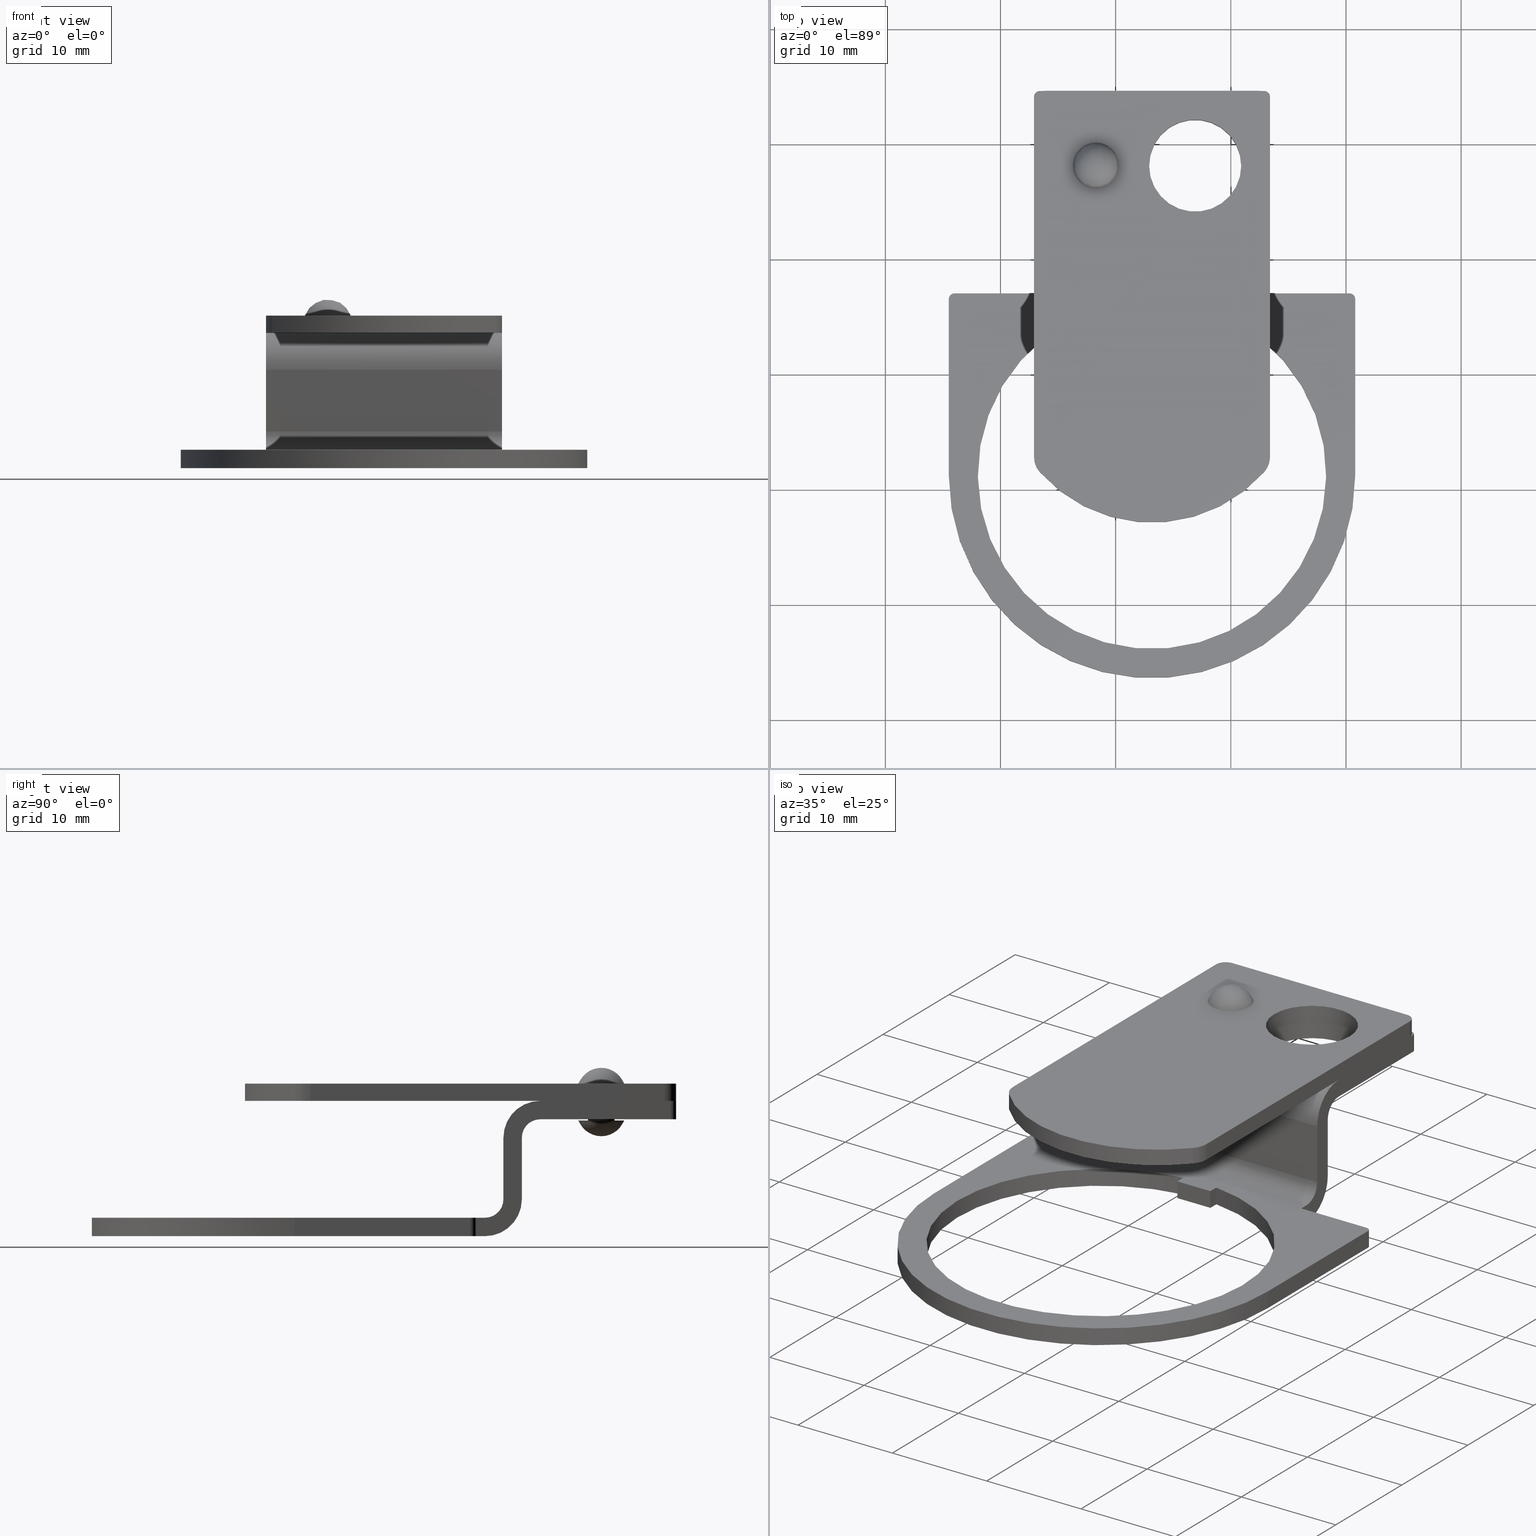
[diagram: canonical four-view strip — front | top / right | iso, engineering-drawing reading convention]
A machine part, canonical four-view strip (front | top / right | iso — engineering-drawing reading convention). The complete STEP part file that produces these views, byte-faithful:
ISO-10303-21;
HEADER;
/****************************************************************
 * Generated by software with PDE/Lib inside                    *
 * PDElib Version v51a, created Thu 12/14/2006                  *
 * International Technegroup Inc. (www.iti-oh.com)              *
 ****************************************************************/
FILE_DESCRIPTION((''),'2;1');
FILE_NAME('M:\\cad\\1PB\\PAP\\PAP.stp','2007-11-21T14:58:29',('Philipp'),(''),'Autodesk Inventor 2008','Autodesk Inventor 2008','');
FILE_SCHEMA(('AUTOMOTIVE_DESIGN { 1 0 10303 214 1 1 1 1 }'));
ENDSEC;
DATA;
#5=APPLICATION_CONTEXT('automotive design');
#6=APPLICATION_PROTOCOL_DEFINITION('International Standard','automotive_design',2001,#5);
#7=PRODUCT_CONTEXT('',#5,'mechanical');
#8=PRODUCT('PAP','PAP',$,(#7));
#9=PRODUCT_RELATED_PRODUCT_CATEGORY('part',$,(#8));
#10=PRODUCT_DEFINITION_FORMATION('',$,#8);
#11=PRODUCT_DEFINITION_CONTEXT('part definition',#5,'design');
#12=PRODUCT_DEFINITION('',$,#10,#11);
#18=(NAMED_UNIT(*)PLANE_ANGLE_UNIT()SI_UNIT($,.RADIAN.));
#19=DIMENSIONAL_EXPONENTS(0.0,0.0,0.0,0.0,0.0,0.0,0.0);
#20=PLANE_ANGLE_MEASURE_WITH_UNIT(PLANE_ANGLE_MEASURE(0.017453292500000),#18);
#24=(CONVERSION_BASED_UNIT('DEGREE',#20)NAMED_UNIT(#19)PLANE_ANGLE_UNIT());
#28=(NAMED_UNIT(*)SI_UNIT($,.STERADIAN.)SOLID_ANGLE_UNIT());
#32=(LENGTH_UNIT()NAMED_UNIT(*)SI_UNIT(.MILLI.,.METRE.));
#34=UNCERTAINTY_MEASURE_WITH_UNIT(LENGTH_MEASURE(0.010000000000000),#32,'DISTANCE_ACCURACY_VALUE','');
#36=(GEOMETRIC_REPRESENTATION_CONTEXT(3)GLOBAL_UNCERTAINTY_ASSIGNED_CONTEXT((#34))GLOBAL_UNIT_ASSIGNED_CONTEXT((#24,#28,#32))REPRESENTATION_CONTEXT('None','None'));
#37=AXIS2_PLACEMENT_3D('',#38,#39,#40);
#38=CARTESIAN_POINT('',(0.0,0.0,0.0));
#39=DIRECTION('',(0.0,0.0,1.0));
#40=DIRECTION('',(1.0,0.0,0.0));
#41=SHAPE_REPRESENTATION('',(#37,#1020,#1458,#1631),#36);
#42=PRODUCT_DEFINITION_SHAPE('','',#12);
#43=SHAPE_DEFINITION_REPRESENTATION(#42,#41);
#44=APPLICATION_CONTEXT('automotive design');
#45=APPLICATION_PROTOCOL_DEFINITION('International Standard','automotive_design',2001,#44);
#46=PRODUCT_CONTEXT('',#44,'mechanical');
#47=PRODUCT('standoff','standoff',$,(#46));
#48=PRODUCT_RELATED_PRODUCT_CATEGORY('part',$,(#47));
#49=PRODUCT_DEFINITION_FORMATION('',$,#47);
#50=PRODUCT_DEFINITION_CONTEXT('part definition',#44,'design');
#51=PRODUCT_DEFINITION('',$,#49,#50);
#57=(NAMED_UNIT(*)PLANE_ANGLE_UNIT()SI_UNIT($,.RADIAN.));
#58=DIMENSIONAL_EXPONENTS(0.0,0.0,0.0,0.0,0.0,0.0,0.0);
#59=PLANE_ANGLE_MEASURE_WITH_UNIT(PLANE_ANGLE_MEASURE(0.017453292500000),#57);
#63=(CONVERSION_BASED_UNIT('DEGREE',#59)NAMED_UNIT(#58)PLANE_ANGLE_UNIT());
#67=(NAMED_UNIT(*)SI_UNIT($,.STERADIAN.)SOLID_ANGLE_UNIT());
#71=(LENGTH_UNIT()NAMED_UNIT(*)SI_UNIT(.MILLI.,.METRE.));
#73=UNCERTAINTY_MEASURE_WITH_UNIT(LENGTH_MEASURE(0.010000000000000),#71,'DISTANCE_ACCURACY_VALUE','');
#75=(GEOMETRIC_REPRESENTATION_CONTEXT(3)GLOBAL_UNCERTAINTY_ASSIGNED_CONTEXT((#73))GLOBAL_UNIT_ASSIGNED_CONTEXT((#63,#67,#71))REPRESENTATION_CONTEXT('None','None'));
#76=AXIS2_PLACEMENT_3D('',#77,#78,#79);
#77=CARTESIAN_POINT('',(0.0,0.0,0.0));
#78=DIRECTION('',(0.0,0.0,1.0));
#79=DIRECTION('',(1.0,0.0,0.0));
#80=SHAPE_REPRESENTATION('',(#76),#75);
#81=PRODUCT_DEFINITION_SHAPE('','',#51);
#82=SHAPE_DEFINITION_REPRESENTATION(#81,#80);
#88=(NAMED_UNIT(*)PLANE_ANGLE_UNIT()SI_UNIT($,.RADIAN.));
#89=DIMENSIONAL_EXPONENTS(0.0,0.0,0.0,0.0,0.0,0.0,0.0);
#90=PLANE_ANGLE_MEASURE_WITH_UNIT(PLANE_ANGLE_MEASURE(0.017453292500000),#88);
#94=(CONVERSION_BASED_UNIT('DEGREE',#90)NAMED_UNIT(#89)PLANE_ANGLE_UNIT());
#98=(NAMED_UNIT(*)SI_UNIT($,.STERADIAN.)SOLID_ANGLE_UNIT());
#102=(LENGTH_UNIT()NAMED_UNIT(*)SI_UNIT(.MILLI.,.METRE.));
#104=UNCERTAINTY_MEASURE_WITH_UNIT(LENGTH_MEASURE(0.000001000000000),#102,'DISTANCE_ACCURACY_VALUE','');
#106=(GEOMETRIC_REPRESENTATION_CONTEXT(3)GLOBAL_UNCERTAINTY_ASSIGNED_CONTEXT((#104))GLOBAL_UNIT_ASSIGNED_CONTEXT((#94,#98,#102))REPRESENTATION_CONTEXT('','3D'));
#107=CARTESIAN_POINT('',(-6.594414371630420,13.958010052756922,11.350000000000001));
#108=DIRECTION('',(-6.747902E-047,0.0,1.0));
#109=DIRECTION('',(-0.707106781186546,0.707106781186549,0.0));
#110=AXIS2_PLACEMENT_3D('',#107,#108,#109);
#111=CYLINDRICAL_SURFACE('',#110,0.500000000000000);
#112=CARTESIAN_POINT('',(-7.094414371630422,13.958010052756922,11.750000000000004));
#113=VERTEX_POINT('',#112);
#114=CARTESIAN_POINT('',(-6.594414371630420,14.458010052756922,11.750000000000004));
#115=VERTEX_POINT('',#114);
#116=CARTESIAN_POINT('',(-6.594414371630420,13.958010052756922,11.750000000000004));
#117=DIRECTION('',(0.0,0.0,-1.0));
#118=DIRECTION('',(-0.707106781186546,0.707106781186549,0.0));
#119=AXIS2_PLACEMENT_3D('',#116,#117,#118);
#120=CIRCLE('',#119,0.500000000000000);
#121=EDGE_CURVE('',#113,#115,#120,.T.);
#122=ORIENTED_EDGE('',*,*,#121,.T.);
#123=CARTESIAN_POINT('',(-6.594414371630420,14.458010052756922,10.150000000000002));
#124=VERTEX_POINT('',#123);
#125=CARTESIAN_POINT('',(-6.594414371630420,14.458010052756922,11.750000000000004));
#126=DIRECTION('',(0.0,0.0,-1.0));
#127=VECTOR('',#126,1.600000000000001);
#128=LINE('',#125,#127);
#129=EDGE_CURVE('',#115,#124,#128,.T.);
#130=ORIENTED_EDGE('',*,*,#129,.T.);
#131=CARTESIAN_POINT('',(-7.094414371630422,13.958010052756922,10.150000000000002));
#132=VERTEX_POINT('',#131);
#133=CARTESIAN_POINT('',(-6.594414371630420,13.958010052756922,10.150000000000002));
#134=DIRECTION('',(0.0,0.0,1.0));
#135=DIRECTION('',(-0.707106781186546,0.707106781186549,0.0));
#136=AXIS2_PLACEMENT_3D('',#133,#134,#135);
#137=CIRCLE('',#136,0.500000000000000);
#138=EDGE_CURVE('',#124,#132,#137,.T.);
#139=ORIENTED_EDGE('',*,*,#138,.T.);
#140=CARTESIAN_POINT('',(-7.094414371630422,13.958010052756922,10.150000000000002));
#141=DIRECTION('',(0.0,0.0,1.0));
#142=VECTOR('',#141,1.600000000000001);
#143=LINE('',#140,#142);
#144=EDGE_CURVE('',#132,#113,#143,.T.);
#145=ORIENTED_EDGE('',*,*,#144,.T.);
#146=EDGE_LOOP('',(#122,#130,#139,#145));
#147=FACE_OUTER_BOUND('',#146,.T.);
#148=ADVANCED_FACE('',(#147),#111,.T.);
#149=CARTESIAN_POINT('',(-7.094414371630422,14.458010052756922,11.750000000000004));
#150=DIRECTION('',(0.0,1.0,0.0));
#151=DIRECTION('',(0.0,0.0,1.0));
#152=AXIS2_PLACEMENT_3D('',#149,#150,#151);
#153=PLANE('',#152);
#154=ORIENTED_EDGE('',*,*,#129,.F.);
#155=CARTESIAN_POINT('',(12.905585628369575,14.458010052756922,11.750000000000004));
#156=VERTEX_POINT('',#155);
#157=CARTESIAN_POINT('',(-6.594414371630420,14.458010052756922,11.750000000000004));
#158=DIRECTION('',(1.0,0.0,0.0));
#159=VECTOR('',#158,19.499999999999996);
#160=LINE('',#157,#159);
#161=EDGE_CURVE('',#115,#156,#160,.T.);
#162=ORIENTED_EDGE('',*,*,#161,.T.);
#163=CARTESIAN_POINT('',(12.905585628369575,14.458010052756922,10.150000000000002));
#164=VERTEX_POINT('',#163);
#165=CARTESIAN_POINT('',(12.905585628369575,14.458010052756922,10.150000000000002));
#166=DIRECTION('',(0.0,0.0,1.0));
#167=VECTOR('',#166,1.600000000000001);
#168=LINE('',#165,#167);
#169=EDGE_CURVE('',#164,#156,#168,.T.);
#170=ORIENTED_EDGE('',*,*,#169,.F.);
#171=CARTESIAN_POINT('',(-6.594414371630420,14.458010052756922,10.150000000000002));
#172=DIRECTION('',(1.0,0.0,0.0));
#173=VECTOR('',#172,19.499999999999996);
#174=LINE('',#171,#173);
#175=EDGE_CURVE('',#124,#164,#174,.T.);
#176=ORIENTED_EDGE('',*,*,#175,.F.);
#177=EDGE_LOOP('',(#154,#162,#170,#176));
#178=FACE_OUTER_BOUND('',#177,.T.);
#179=ADVANCED_FACE('',(#178),#153,.T.);
#180=CARTESIAN_POINT('',(-7.094414371630422,-0.541989947243078,11.750000000000004));
#181=DIRECTION('',(0.0,0.0,1.0));
#182=DIRECTION('',(1.0,0.0,0.0));
#183=AXIS2_PLACEMENT_3D('',#180,#181,#182);
#184=PLANE('',#183);
#185=ORIENTED_EDGE('',*,*,#121,.F.);
#186=CARTESIAN_POINT('',(-7.094414371630422,2.658010052756923,11.750000000000004));
#187=VERTEX_POINT('',#186);
#188=CARTESIAN_POINT('',(-7.094414371630422,13.958010052756922,11.750000000000004));
#189=DIRECTION('',(0.0,-1.0,0.0));
#190=VECTOR('',#189,11.299999999999999);
#191=LINE('',#188,#190);
#192=EDGE_CURVE('',#113,#187,#191,.T.);
#193=ORIENTED_EDGE('',*,*,#192,.T.);
#194=CARTESIAN_POINT('',(13.405585628369575,2.658010052756930,11.750000000000004));
#195=VERTEX_POINT('',#194);
#196=CARTESIAN_POINT('',(13.405585628369575,2.658010052756930,11.750000000000004));
#197=DIRECTION('',(-1.0,0.0,0.0));
#198=VECTOR('',#197,20.499999999999996);
#199=LINE('',#196,#198);
#200=EDGE_CURVE('',#195,#187,#199,.T.);
#201=ORIENTED_EDGE('',*,*,#200,.F.);
#202=CARTESIAN_POINT('',(13.405585628369575,13.958010052756924,11.750000000000004));
#203=VERTEX_POINT('',#202);
#204=CARTESIAN_POINT('',(13.405585628369575,2.658010052756930,11.750000000000004));
#205=DIRECTION('',(0.0,1.0,0.0));
#206=VECTOR('',#205,11.299999999999994);
#207=LINE('',#204,#206);
#208=EDGE_CURVE('',#195,#203,#207,.T.);
#209=ORIENTED_EDGE('',*,*,#208,.T.);
#210=CARTESIAN_POINT('',(12.905585628369575,13.958010052756924,11.750000000000004));
#211=DIRECTION('',(0.0,0.0,-1.0));
#212=DIRECTION('',(0.707106781186551,0.707106781186544,0.0));
#213=AXIS2_PLACEMENT_3D('',#210,#211,#212);
#214=CIRCLE('',#213,0.500000000000000);
#215=EDGE_CURVE('',#156,#203,#214,.T.);
#216=ORIENTED_EDGE('',*,*,#215,.F.);
#217=ORIENTED_EDGE('',*,*,#161,.F.);
#218=EDGE_LOOP('',(#185,#193,#201,#209,#216,#217));
#219=FACE_OUTER_BOUND('',#218,.T.);
#220=CARTESIAN_POINT('',(10.905585628369575,7.958010052756922,11.750000000000004));
#221=VERTEX_POINT('',#220);
#222=CARTESIAN_POINT('',(6.905585628369577,7.958010052756922,11.750000000000004));
#223=DIRECTION('',(0.0,0.0,-1.0));
#224=DIRECTION('',(-1.0,0.0,0.0));
#225=AXIS2_PLACEMENT_3D('',#222,#223,#224);
#226=CIRCLE('',#225,4.0);
#227=EDGE_CURVE('',#221,#221,#226,.T.);
#228=ORIENTED_EDGE('',*,*,#227,.T.);
#229=EDGE_LOOP('',(#228));
#230=FACE_BOUND('',#229,.T.);
#231=CARTESIAN_POINT('',(-0.469414371630421,7.958010052756922,11.750000000000004));
#232=VERTEX_POINT('',#231);
#233=CARTESIAN_POINT('',(-1.719414371630421,7.958010052756922,11.750000000000004));
#234=DIRECTION('',(0.0,0.0,-1.0));
#235=DIRECTION('',(-1.0,0.0,0.0));
#236=AXIS2_PLACEMENT_3D('',#233,#234,#235);
#237=CIRCLE('',#236,1.250000000000000);
#238=EDGE_CURVE('',#232,#232,#237,.T.);
#239=ORIENTED_EDGE('',*,*,#238,.T.);
#240=EDGE_LOOP('',(#239));
#241=FACE_BOUND('',#240,.T.);
#242=ADVANCED_FACE('',(#219,#230,#241),#184,.T.);
#243=CARTESIAN_POINT('',(12.905585628369575,13.958010052756924,11.350000000000001));
#244=DIRECTION('',(1.759747E-046,0.0,-1.0));
#245=DIRECTION('',(0.707106781186551,0.707106781186544,0.0));
#246=AXIS2_PLACEMENT_3D('',#243,#244,#245);
#247=CYLINDRICAL_SURFACE('',#246,0.500000000000000);
#248=CARTESIAN_POINT('',(13.405585628369575,13.958010052756924,10.150000000000002));
#249=VERTEX_POINT('',#248);
#250=CARTESIAN_POINT('',(12.905585628369575,13.958010052756924,10.150000000000002));
#251=DIRECTION('',(0.0,0.0,1.0));
#252=DIRECTION('',(0.707106781186551,0.707106781186544,0.0));
#253=AXIS2_PLACEMENT_3D('',#250,#251,#252);
#254=CIRCLE('',#253,0.500000000000000);
#255=EDGE_CURVE('',#249,#164,#254,.T.);
#256=ORIENTED_EDGE('',*,*,#255,.T.);
#257=ORIENTED_EDGE('',*,*,#169,.T.);
#258=ORIENTED_EDGE('',*,*,#215,.T.);
#259=CARTESIAN_POINT('',(13.405585628369575,13.958010052756924,11.750000000000004));
#260=DIRECTION('',(0.0,0.0,-1.0));
#261=VECTOR('',#260,1.600000000000001);
#262=LINE('',#259,#261);
#263=EDGE_CURVE('',#203,#249,#262,.T.);
#264=ORIENTED_EDGE('',*,*,#263,.T.);
#265=EDGE_LOOP('',(#256,#257,#258,#264));
#266=FACE_OUTER_BOUND('',#265,.T.);
#267=ADVANCED_FACE('',(#266),#247,.T.);
#268=CARTESIAN_POINT('',(13.405585628369575,6.958010052756922,10.950000000000005));
#269=DIRECTION('',(1.0,0.0,0.0));
#270=DIRECTION('',(0.0,0.0,-1.0));
#271=AXIS2_PLACEMENT_3D('',#268,#269,#270);
#272=PLANE('',#271);
#273=ORIENTED_EDGE('',*,*,#263,.F.);
#274=ORIENTED_EDGE('',*,*,#208,.F.);
#275=CARTESIAN_POINT('',(13.405585628369575,-0.541989947243078,8.550000000000001));
#276=VERTEX_POINT('',#275);
#277=CARTESIAN_POINT('',(13.405585628369575,2.658010052756922,8.550000000000003));
#278=DIRECTION('',(-1.0,0.0,0.0));
#279=DIRECTION('',(0.0,-1.0,0.0));
#280=AXIS2_PLACEMENT_3D('',#277,#278,#279);
#281=CIRCLE('',#280,3.200000000000001);
#282=EDGE_CURVE('',#276,#195,#281,.T.);
#283=ORIENTED_EDGE('',*,*,#282,.F.);
#284=CARTESIAN_POINT('',(13.405585628369575,-0.541989947243079,3.200000000000001));
#285=VERTEX_POINT('',#284);
#286=CARTESIAN_POINT('',(13.405585628369575,-0.541989947243079,3.200000000000001));
#287=DIRECTION('',(0.0,0.0,1.0));
#288=VECTOR('',#287,5.350000000000000);
#289=LINE('',#286,#288);
#290=EDGE_CURVE('',#285,#276,#289,.T.);
#291=ORIENTED_EDGE('',*,*,#290,.F.);
#292=CARTESIAN_POINT('',(13.405585628369575,-2.141989947243079,1.600000000000000));
#293=VERTEX_POINT('',#292);
#294=CARTESIAN_POINT('',(13.405585628369575,-2.141989947243079,3.200000000000001));
#295=DIRECTION('',(1.0,0.0,0.0));
#296=DIRECTION('',(0.0,0.0,-1.0));
#297=AXIS2_PLACEMENT_3D('',#294,#295,#296);
#298=CIRCLE('',#297,1.599999999999999);
#299=EDGE_CURVE('',#293,#285,#298,.T.);
#300=ORIENTED_EDGE('',*,*,#299,.F.);
#301=CARTESIAN_POINT('',(13.405585628369575,-2.941989947243080,1.600000000000001));
#302=VERTEX_POINT('',#301);
#303=CARTESIAN_POINT('',(13.405585628369575,-2.941989947243080,1.600000000000001));
#304=DIRECTION('',(0.0,1.0,0.0));
#305=VECTOR('',#304,0.800000000000000);
#306=LINE('',#303,#305);
#307=EDGE_CURVE('',#302,#293,#306,.T.);
#308=ORIENTED_EDGE('',*,*,#307,.F.);
#309=CARTESIAN_POINT('',(13.405585628369575,-2.941989947243080,8.326673E-016));
#310=VERTEX_POINT('',#309);
#311=CARTESIAN_POINT('',(13.405585628369575,-2.941989947243080,8.326673E-016));
#312=DIRECTION('',(0.0,0.0,1.0));
#313=VECTOR('',#312,1.600000000000000);
#314=LINE('',#311,#313);
#315=EDGE_CURVE('',#310,#302,#314,.T.);
#316=ORIENTED_EDGE('',*,*,#315,.F.);
#317=CARTESIAN_POINT('',(13.405585628369575,-2.141989947243079,8.326673E-016));
#318=VERTEX_POINT('',#317);
#319=CARTESIAN_POINT('',(13.405585628369575,-2.141989947243079,8.326673E-016));
#320=DIRECTION('',(0.0,-1.0,0.0));
#321=VECTOR('',#320,0.800000000000000);
#322=LINE('',#319,#321);
#323=EDGE_CURVE('',#318,#310,#322,.T.);
#324=ORIENTED_EDGE('',*,*,#323,.F.);
#325=CARTESIAN_POINT('',(13.405585628369575,1.058010052756921,3.200000000000001));
#326=VERTEX_POINT('',#325);
#327=CARTESIAN_POINT('',(13.405585628369575,-2.141989947243079,3.200000000000001));
#328=DIRECTION('',(1.0,0.0,0.0));
#329=DIRECTION('',(0.0,0.0,-1.0));
#330=AXIS2_PLACEMENT_3D('',#327,#328,#329);
#331=CIRCLE('',#330,3.199999999999999);
#332=EDGE_CURVE('',#318,#326,#331,.T.);
#333=ORIENTED_EDGE('',*,*,#332,.T.);
#334=CARTESIAN_POINT('',(13.405585628369575,1.058010052756922,8.550000000000001));
#335=VERTEX_POINT('',#334);
#336=CARTESIAN_POINT('',(13.405585628369575,1.058010052756922,8.550000000000001));
#337=DIRECTION('',(0.0,0.0,-1.0));
#338=VECTOR('',#337,5.350000000000000);
#339=LINE('',#336,#338);
#340=EDGE_CURVE('',#335,#326,#339,.T.);
#341=ORIENTED_EDGE('',*,*,#340,.F.);
#342=CARTESIAN_POINT('',(13.405585628369575,2.658010052756930,10.150000000000002));
#343=VERTEX_POINT('',#342);
#344=CARTESIAN_POINT('',(13.405585628369575,2.658010052756922,8.550000000000003));
#345=DIRECTION('',(-1.0,0.0,0.0));
#346=DIRECTION('',(0.0,-1.0,0.0));
#347=AXIS2_PLACEMENT_3D('',#344,#345,#346);
#348=CIRCLE('',#347,1.600000000000000);
#349=EDGE_CURVE('',#335,#343,#348,.T.);
#350=ORIENTED_EDGE('',*,*,#349,.T.);
#351=CARTESIAN_POINT('',(13.405585628369575,13.958010052756924,10.150000000000002));
#352=DIRECTION('',(0.0,-1.0,0.0));
#353=VECTOR('',#352,11.299999999999994);
#354=LINE('',#351,#353);
#355=EDGE_CURVE('',#249,#343,#354,.T.);
#356=ORIENTED_EDGE('',*,*,#355,.F.);
#357=EDGE_LOOP('',(#273,#274,#283,#291,#300,#308,#316,#324,#333,#341,#350,#356));
#358=FACE_OUTER_BOUND('',#357,.T.);
#359=ADVANCED_FACE('',(#358),#272,.T.);
#360=CARTESIAN_POINT('',(20.305585628369588,-3.441989947243079,4.163336E-016));
#361=DIRECTION('',(0.0,0.0,1.0));
#362=DIRECTION('',(0.707106781186546,0.707106781186549,0.0));
#363=AXIS2_PLACEMENT_3D('',#360,#361,#362);
#364=CYLINDRICAL_SURFACE('',#363,0.500000000000000);
#365=CARTESIAN_POINT('',(20.305585628369588,-2.941989947243080,1.600000000000000));
#366=VERTEX_POINT('',#365);
#367=CARTESIAN_POINT('',(20.805585628369588,-3.441989947243080,1.600000000000000));
#368=VERTEX_POINT('',#367);
#369=CARTESIAN_POINT('',(20.305585628369588,-3.441989947243079,1.600000000000000));
#370=DIRECTION('',(0.0,0.0,-1.0));
#371=DIRECTION('',(0.707106781186546,0.707106781186549,0.0));
#372=AXIS2_PLACEMENT_3D('',#369,#370,#371);
#373=CIRCLE('',#372,0.500000000000000);
#374=EDGE_CURVE('',#366,#368,#373,.T.);
#375=ORIENTED_EDGE('',*,*,#374,.T.);
#376=CARTESIAN_POINT('',(20.805585628369588,-3.441989947243080,0.0));
#377=VERTEX_POINT('',#376);
#378=CARTESIAN_POINT('',(20.805585628369588,-3.441989947243080,1.600000000000000));
#379=DIRECTION('',(0.0,0.0,-1.0));
#380=VECTOR('',#379,1.600000000000000);
#381=LINE('',#378,#380);
#382=EDGE_CURVE('',#368,#377,#381,.T.);
#383=ORIENTED_EDGE('',*,*,#382,.T.);
#384=CARTESIAN_POINT('',(20.305585628369588,-2.941989947243080,0.0));
#385=VERTEX_POINT('',#384);
#386=CARTESIAN_POINT('',(20.305585628369588,-3.441989947243079,0.0));
#387=DIRECTION('',(0.0,0.0,1.0));
#388=DIRECTION('',(0.707106781186546,0.707106781186549,0.0));
#389=AXIS2_PLACEMENT_3D('',#386,#387,#388);
#390=CIRCLE('',#389,0.500000000000000);
#391=EDGE_CURVE('',#377,#385,#390,.T.);
#392=ORIENTED_EDGE('',*,*,#391,.T.);
#393=CARTESIAN_POINT('',(20.305585628369588,-2.941989947243080,0.0));
#394=DIRECTION('',(0.0,0.0,1.0));
#395=VECTOR('',#394,1.600000000000000);
#396=LINE('',#393,#395);
#397=EDGE_CURVE('',#385,#366,#396,.T.);
#398=ORIENTED_EDGE('',*,*,#397,.T.);
#399=EDGE_LOOP('',(#375,#383,#392,#398));
#400=FACE_OUTER_BOUND('',#399,.T.);
#401=ADVANCED_FACE('',(#400),#364,.T.);
#402=CARTESIAN_POINT('',(15.005585628369577,-2.941989947243080,8.326673E-016));
#403=DIRECTION('',(0.0,-1.0,0.0));
#404=DIRECTION('',(0.0,0.0,-1.0));
#405=AXIS2_PLACEMENT_3D('',#402,#403,#404);
#406=PLANE('',#405);
#407=ORIENTED_EDGE('',*,*,#397,.F.);
#408=CARTESIAN_POINT('',(13.405585628369575,-2.941989947243080,8.326673E-016));
#409=DIRECTION('',(1.0,0.0,0.0));
#410=VECTOR('',#409,6.900000000000013);
#411=LINE('',#408,#410);
#412=EDGE_CURVE('',#310,#385,#411,.T.);
#413=ORIENTED_EDGE('',*,*,#412,.F.);
#414=ORIENTED_EDGE('',*,*,#315,.T.);
#415=CARTESIAN_POINT('',(20.305585628369588,-2.941989947243080,1.600000000000000));
#416=DIRECTION('',(-1.0,0.0,0.0));
#417=VECTOR('',#416,6.900000000000013);
#418=LINE('',#415,#417);
#419=EDGE_CURVE('',#366,#302,#418,.T.);
#420=ORIENTED_EDGE('',*,*,#419,.F.);
#421=EDGE_LOOP('',(#407,#413,#414,#420));
#422=FACE_OUTER_BOUND('',#421,.T.);
#423=ADVANCED_FACE('',(#422),#406,.F.);
#424=CARTESIAN_POINT('',(3.155585628369584,-14.771048569199149,0.0));
#425=DIRECTION('',(0.0,0.0,1.0));
#426=DIRECTION('',(1.0,0.0,0.0));
#427=AXIS2_PLACEMENT_3D('',#424,#425,#426);
#428=PLANE('',#427);
#429=ORIENTED_EDGE('',*,*,#391,.F.);
#430=CARTESIAN_POINT('',(20.805585628369588,-18.691989947243083,0.0));
#431=VERTEX_POINT('',#430);
#432=CARTESIAN_POINT('',(20.805585628369588,-18.691989947243083,0.0));
#433=DIRECTION('',(0.0,1.0,0.0));
#434=VECTOR('',#433,15.250000000000004);
#435=LINE('',#432,#434);
#436=EDGE_CURVE('',#431,#377,#435,.T.);
#437=ORIENTED_EDGE('',*,*,#436,.F.);
#438=CARTESIAN_POINT('',(-14.494414371630416,-18.691989947243087,0.0));
#439=VERTEX_POINT('',#438);
#440=CARTESIAN_POINT('',(3.155585628369584,-18.691989947243083,0.0));
#441=DIRECTION('',(0.0,0.0,1.0));
#442=DIRECTION('',(-1.0,0.0,0.0));
#443=AXIS2_PLACEMENT_3D('',#440,#441,#442);
#444=CIRCLE('',#443,17.649999999999999);
#445=EDGE_CURVE('',#439,#431,#444,.T.);
#446=ORIENTED_EDGE('',*,*,#445,.F.);
#447=CARTESIAN_POINT('',(-14.494414371630416,-3.441989947243079,0.0));
#448=VERTEX_POINT('',#447);
#449=CARTESIAN_POINT('',(-14.494414371630416,-3.441989947243079,0.0));
#450=DIRECTION('',(0.0,-1.0,0.0));
#451=VECTOR('',#450,15.250000000000007);
#452=LINE('',#449,#451);
#453=EDGE_CURVE('',#448,#439,#452,.T.);
#454=ORIENTED_EDGE('',*,*,#453,.F.);
#455=CARTESIAN_POINT('',(-13.994414371630416,-2.941989947243080,0.0));
#456=VERTEX_POINT('',#455);
#457=CARTESIAN_POINT('',(-13.994414371630416,-3.441989947243079,0.0));
#458=DIRECTION('',(0.0,0.0,1.0));
#459=DIRECTION('',(-0.707106781186546,0.707106781186549,0.0));
#460=AXIS2_PLACEMENT_3D('',#457,#458,#459);
#461=CIRCLE('',#460,0.500000000000000);
#462=EDGE_CURVE('',#456,#448,#461,.T.);
#463=ORIENTED_EDGE('',*,*,#462,.F.);
#464=CARTESIAN_POINT('',(-7.094414371630422,-2.941989947243080,8.326673E-016));
#465=VERTEX_POINT('',#464);
#466=CARTESIAN_POINT('',(-13.994414371630416,-2.941989947243080,0.0));
#467=DIRECTION('',(1.0,0.0,0.0));
#468=VECTOR('',#467,6.899999999999994);
#469=LINE('',#466,#468);
#470=EDGE_CURVE('',#456,#465,#469,.T.);
#471=ORIENTED_EDGE('',*,*,#470,.T.);
#472=CARTESIAN_POINT('',(-7.094414371630422,-2.141989947243079,8.326673E-016));
#473=VERTEX_POINT('',#472);
#474=CARTESIAN_POINT('',(-7.094414371630422,-2.941989947243080,8.326673E-016));
#475=DIRECTION('',(0.0,1.0,0.0));
#476=VECTOR('',#475,0.800000000000000);
#477=LINE('',#474,#476);
#478=EDGE_CURVE('',#465,#473,#477,.T.);
#479=ORIENTED_EDGE('',*,*,#478,.T.);
#480=CARTESIAN_POINT('',(-7.094414371630422,-2.141989947243079,8.326673E-016));
#481=DIRECTION('',(1.0,0.0,0.0));
#482=VECTOR('',#481,20.499999999999996);
#483=LINE('',#480,#482);
#484=EDGE_CURVE('',#473,#318,#483,.T.);
#485=ORIENTED_EDGE('',*,*,#484,.T.);
#486=ORIENTED_EDGE('',*,*,#323,.T.);
#487=ORIENTED_EDGE('',*,*,#412,.T.);
#488=EDGE_LOOP('',(#429,#437,#446,#454,#463,#471,#479,#485,#486,#487));
#489=FACE_OUTER_BOUND('',#488,.T.);
#490=CARTESIAN_POINT('',(1.405585628369576,-4.566989947243085,0.0));
#491=VERTEX_POINT('',#490);
#492=CARTESIAN_POINT('',(1.405585628369576,-3.668570729235486,0.0));
#493=VERTEX_POINT('',#492);
#494=CARTESIAN_POINT('',(1.405585628369576,-4.566989947243085,0.0));
#495=DIRECTION('',(0.0,1.0,0.0));
#496=VECTOR('',#495,0.898419218007599);
#497=LINE('',#494,#496);
#498=EDGE_CURVE('',#491,#493,#497,.T.);
#499=ORIENTED_EDGE('',*,*,#498,.T.);
#500=CARTESIAN_POINT('',(4.905585628369576,-3.668570729235484,0.0));
#501=VERTEX_POINT('',#500);
#502=CARTESIAN_POINT('',(3.155585628369584,-18.691989947243083,0.0));
#503=DIRECTION('',(0.0,0.0,1.0));
#504=DIRECTION('',(-0.115702479338844,0.993283915240172,0.0));
#505=AXIS2_PLACEMENT_3D('',#502,#503,#504);
#506=CIRCLE('',#505,15.125000000000002);
#507=EDGE_CURVE('',#493,#501,#506,.T.);
#508=ORIENTED_EDGE('',*,*,#507,.T.);
#509=CARTESIAN_POINT('',(4.905585628369576,-4.566989947243082,0.0));
#510=VERTEX_POINT('',#509);
#511=CARTESIAN_POINT('',(4.905585628369576,-3.668570729235484,0.0));
#512=DIRECTION('',(0.0,-1.0,0.0));
#513=VECTOR('',#512,0.898419218007597);
#514=LINE('',#511,#513);
#515=EDGE_CURVE('',#501,#510,#514,.T.);
#516=ORIENTED_EDGE('',*,*,#515,.T.);
#517=CARTESIAN_POINT('',(4.905585628369576,-4.566989947243082,0.0));
#518=DIRECTION('',(-1.0,0.0,0.0));
#519=VECTOR('',#518,3.500000000000000);
#520=LINE('',#517,#519);
#521=EDGE_CURVE('',#510,#491,#520,.T.);
#522=ORIENTED_EDGE('',*,*,#521,.T.);
#523=EDGE_LOOP('',(#499,#508,#516,#522));
#524=FACE_BOUND('',#523,.T.);
#525=ADVANCED_FACE('',(#489,#524),#428,.F.);
#526=CARTESIAN_POINT('',(-13.994414371630416,-3.441989947243079,4.163336E-016));
#527=DIRECTION('',(0.0,0.0,-1.0));
#528=DIRECTION('',(-0.707106781186546,0.707106781186549,0.0));
#529=AXIS2_PLACEMENT_3D('',#526,#527,#528);
#530=CYLINDRICAL_SURFACE('',#529,0.500000000000000);
#531=ORIENTED_EDGE('',*,*,#462,.T.);
#532=CARTESIAN_POINT('',(-14.494414371630416,-3.441989947243079,1.600000000000000));
#533=VERTEX_POINT('',#532);
#534=CARTESIAN_POINT('',(-14.494414371630416,-3.441989947243079,0.0));
#535=DIRECTION('',(0.0,0.0,1.0));
#536=VECTOR('',#535,1.600000000000000);
#537=LINE('',#534,#536);
#538=EDGE_CURVE('',#448,#533,#537,.T.);
#539=ORIENTED_EDGE('',*,*,#538,.T.);
#540=CARTESIAN_POINT('',(-13.994414371630416,-2.941989947243080,1.600000000000000));
#541=VERTEX_POINT('',#540);
#542=CARTESIAN_POINT('',(-13.994414371630416,-3.441989947243079,1.600000000000000));
#543=DIRECTION('',(0.0,0.0,-1.0));
#544=DIRECTION('',(-0.707106781186546,0.707106781186549,0.0));
#545=AXIS2_PLACEMENT_3D('',#542,#543,#544);
#546=CIRCLE('',#545,0.500000000000000);
#547=EDGE_CURVE('',#533,#541,#546,.T.);
#548=ORIENTED_EDGE('',*,*,#547,.T.);
#549=CARTESIAN_POINT('',(-13.994414371630416,-2.941989947243080,1.600000000000000));
#550=DIRECTION('',(0.0,0.0,-1.0));
#551=VECTOR('',#550,1.600000000000000);
#552=LINE('',#549,#551);
#553=EDGE_CURVE('',#541,#456,#552,.T.);
#554=ORIENTED_EDGE('',*,*,#553,.T.);
#555=EDGE_LOOP('',(#531,#539,#548,#554));
#556=FACE_OUTER_BOUND('',#555,.T.);
#557=ADVANCED_FACE('',(#556),#530,.T.);
#558=CARTESIAN_POINT('',(-7.094414371630422,-2.941989947243080,8.326673E-016));
#559=DIRECTION('',(0.0,-1.0,0.0));
#560=DIRECTION('',(0.0,0.0,-1.0));
#561=AXIS2_PLACEMENT_3D('',#558,#559,#560);
#562=PLANE('',#561);
#563=ORIENTED_EDGE('',*,*,#553,.F.);
#564=CARTESIAN_POINT('',(-7.094414371630422,-2.941989947243080,1.600000000000001));
#565=VERTEX_POINT('',#564);
#566=CARTESIAN_POINT('',(-7.094414371630422,-2.941989947243080,1.600000000000001));
#567=DIRECTION('',(-1.0,0.0,0.0));
#568=VECTOR('',#567,6.899999999999994);
#569=LINE('',#566,#568);
#570=EDGE_CURVE('',#565,#541,#569,.T.);
#571=ORIENTED_EDGE('',*,*,#570,.F.);
#572=CARTESIAN_POINT('',(-7.094414371630422,-2.941989947243080,8.326673E-016));
#573=DIRECTION('',(0.0,0.0,1.0));
#574=VECTOR('',#573,1.600000000000000);
#575=LINE('',#572,#574);
#576=EDGE_CURVE('',#465,#565,#575,.T.);
#577=ORIENTED_EDGE('',*,*,#576,.F.);
#578=ORIENTED_EDGE('',*,*,#470,.F.);
#579=EDGE_LOOP('',(#563,#571,#577,#578));
#580=FACE_OUTER_BOUND('',#579,.T.);
#581=ADVANCED_FACE('',(#580),#562,.F.);
#582=CARTESIAN_POINT('',(3.155585628369584,-14.771048569199149,1.600000000000000));
#583=DIRECTION('',(0.0,0.0,1.0));
#584=DIRECTION('',(1.0,0.0,0.0));
#585=AXIS2_PLACEMENT_3D('',#582,#583,#584);
#586=PLANE('',#585);
#587=ORIENTED_EDGE('',*,*,#374,.F.);
#588=ORIENTED_EDGE('',*,*,#419,.T.);
#589=ORIENTED_EDGE('',*,*,#307,.T.);
#590=CARTESIAN_POINT('',(-7.094414371630422,-2.141989947243079,1.600000000000000));
#591=VERTEX_POINT('',#590);
#592=CARTESIAN_POINT('',(13.405585628369575,-2.141989947243079,1.600000000000000));
#593=DIRECTION('',(-1.0,0.0,0.0));
#594=VECTOR('',#593,20.499999999999996);
#595=LINE('',#592,#594);
#596=EDGE_CURVE('',#293,#591,#595,.T.);
#597=ORIENTED_EDGE('',*,*,#596,.T.);
#598=CARTESIAN_POINT('',(-7.094414371630422,-2.141989947243079,1.600000000000000));
#599=DIRECTION('',(0.0,-1.0,0.0));
#600=VECTOR('',#599,0.800000000000000);
#601=LINE('',#598,#600);
#602=EDGE_CURVE('',#591,#565,#601,.T.);
#603=ORIENTED_EDGE('',*,*,#602,.T.);
#604=ORIENTED_EDGE('',*,*,#570,.T.);
#605=ORIENTED_EDGE('',*,*,#547,.F.);
#606=CARTESIAN_POINT('',(-14.494414371630416,-18.691989947243087,1.600000000000000));
#607=VERTEX_POINT('',#606);
#608=CARTESIAN_POINT('',(-14.494414371630416,-18.691989947243087,1.600000000000000));
#609=DIRECTION('',(0.0,1.0,0.0));
#610=VECTOR('',#609,15.250000000000007);
#611=LINE('',#608,#610);
#612=EDGE_CURVE('',#607,#533,#611,.T.);
#613=ORIENTED_EDGE('',*,*,#612,.F.);
#614=CARTESIAN_POINT('',(20.805585628369588,-18.691989947243083,1.600000000000000));
#615=VERTEX_POINT('',#614);
#616=CARTESIAN_POINT('',(3.155585628369584,-18.691989947243083,1.600000000000000));
#617=DIRECTION('',(0.0,0.0,-1.0));
#618=DIRECTION('',(-1.0,0.0,0.0));
#619=AXIS2_PLACEMENT_3D('',#616,#617,#618);
#620=CIRCLE('',#619,17.649999999999999);
#621=EDGE_CURVE('',#615,#607,#620,.T.);
#622=ORIENTED_EDGE('',*,*,#621,.F.);
#623=CARTESIAN_POINT('',(20.805585628369588,-3.441989947243080,1.600000000000000));
#624=DIRECTION('',(0.0,-1.0,0.0));
#625=VECTOR('',#624,15.250000000000004);
#626=LINE('',#623,#625);
#627=EDGE_CURVE('',#368,#615,#626,.T.);
#628=ORIENTED_EDGE('',*,*,#627,.F.);
#629=EDGE_LOOP('',(#587,#588,#589,#597,#603,#604,#605,#613,#622,#628));
#630=FACE_OUTER_BOUND('',#629,.T.);
#631=CARTESIAN_POINT('',(1.405585628369576,-3.668570729235486,1.600000000000000));
#632=VERTEX_POINT('',#631);
#633=CARTESIAN_POINT('',(1.405585628369576,-4.566989947243085,1.600000000000000));
#634=VERTEX_POINT('',#633);
#635=CARTESIAN_POINT('',(1.405585628369576,-3.668570729235486,1.600000000000000));
#636=DIRECTION('',(0.0,-1.0,0.0));
#637=VECTOR('',#636,0.898419218007599);
#638=LINE('',#635,#637);
#639=EDGE_CURVE('',#632,#634,#638,.T.);
#640=ORIENTED_EDGE('',*,*,#639,.T.);
#641=CARTESIAN_POINT('',(4.905585628369576,-4.566989947243082,1.600000000000000));
#642=VERTEX_POINT('',#641);
#643=CARTESIAN_POINT('',(1.405585628369576,-4.566989947243085,1.600000000000000));
#644=DIRECTION('',(1.0,0.0,0.0));
#645=VECTOR('',#644,3.500000000000000);
#646=LINE('',#643,#645);
#647=EDGE_CURVE('',#634,#642,#646,.T.);
#648=ORIENTED_EDGE('',*,*,#647,.T.);
#649=CARTESIAN_POINT('',(4.905585628369576,-3.668570729235484,1.600000000000000));
#650=VERTEX_POINT('',#649);
#651=CARTESIAN_POINT('',(4.905585628369576,-4.566989947243082,1.600000000000000));
#652=DIRECTION('',(0.0,1.0,0.0));
#653=VECTOR('',#652,0.898419218007597);
#654=LINE('',#651,#653);
#655=EDGE_CURVE('',#642,#650,#654,.T.);
#656=ORIENTED_EDGE('',*,*,#655,.T.);
#657=CARTESIAN_POINT('',(3.155585628369584,-18.691989947243083,1.600000000000000));
#658=DIRECTION('',(0.0,0.0,-1.0));
#659=DIRECTION('',(-0.115702479338844,0.993283915240172,0.0));
#660=AXIS2_PLACEMENT_3D('',#657,#658,#659);
#661=CIRCLE('',#660,15.125000000000002);
#662=EDGE_CURVE('',#650,#632,#661,.T.);
#663=ORIENTED_EDGE('',*,*,#662,.T.);
#664=EDGE_LOOP('',(#640,#648,#656,#663));
#665=FACE_BOUND('',#664,.T.);
#666=ADVANCED_FACE('',(#630,#665),#586,.T.);
#667=CARTESIAN_POINT('',(6.905585628369577,7.958010052756922,11.750000000000004));
#668=DIRECTION('',(0.0,0.0,-1.0));
#669=DIRECTION('',(-1.0,0.0,0.0));
#670=AXIS2_PLACEMENT_3D('',#667,#668,#669);
#671=CYLINDRICAL_SURFACE('',#670,4.0);
#672=CARTESIAN_POINT('',(10.905585628369575,7.958010052756922,10.150000000000002));
#673=VERTEX_POINT('',#672);
#674=CARTESIAN_POINT('',(6.905585628369577,7.958010052756922,10.150000000000002));
#675=DIRECTION('',(0.0,0.0,1.0));
#676=DIRECTION('',(-1.0,0.0,0.0));
#677=AXIS2_PLACEMENT_3D('',#674,#675,#676);
#678=CIRCLE('',#677,4.0);
#679=EDGE_CURVE('',#673,#673,#678,.T.);
#680=ORIENTED_EDGE('',*,*,#679,.F.);
#681=EDGE_LOOP('',(#680));
#682=FACE_OUTER_BOUND('',#681,.T.);
#683=ORIENTED_EDGE('',*,*,#227,.F.);
#684=EDGE_LOOP('',(#683));
#685=FACE_BOUND('',#684,.T.);
#686=ADVANCED_FACE('',(#682,#685),#671,.F.);
#687=CARTESIAN_POINT('',(-1.719414371630421,7.958010052756922,11.750000000000004));
#688=DIRECTION('',(0.0,0.0,-1.0));
#689=DIRECTION('',(-1.0,0.0,0.0));
#690=AXIS2_PLACEMENT_3D('',#687,#688,#689);
#691=CYLINDRICAL_SURFACE('',#690,1.250000000000000);
#692=CARTESIAN_POINT('',(-0.469414371630421,7.958010052756922,10.150000000000002));
#693=VERTEX_POINT('',#692);
#694=CARTESIAN_POINT('',(-1.719414371630421,7.958010052756922,10.150000000000002));
#695=DIRECTION('',(0.0,0.0,1.0));
#696=DIRECTION('',(-1.0,0.0,0.0));
#697=AXIS2_PLACEMENT_3D('',#694,#695,#696);
#698=CIRCLE('',#697,1.250000000000000);
#699=EDGE_CURVE('',#693,#693,#698,.T.);
#700=ORIENTED_EDGE('',*,*,#699,.F.);
#701=EDGE_LOOP('',(#700));
#702=FACE_OUTER_BOUND('',#701,.T.);
#703=ORIENTED_EDGE('',*,*,#238,.F.);
#704=EDGE_LOOP('',(#703));
#705=FACE_BOUND('',#704,.T.);
#706=ADVANCED_FACE('',(#702,#705),#691,.F.);
#707=CARTESIAN_POINT('',(20.805585628369588,0.058010052756922,0.0));
#708=DIRECTION('',(1.0,0.0,0.0));
#709=DIRECTION('',(0.0,0.0,-1.0));
#710=AXIS2_PLACEMENT_3D('',#707,#708,#709);
#711=PLANE('',#710);
#712=ORIENTED_EDGE('',*,*,#382,.F.);
#713=ORIENTED_EDGE('',*,*,#627,.T.);
#714=CARTESIAN_POINT('',(20.805585628369588,-18.691989947243083,0.0));
#715=DIRECTION('',(0.0,0.0,1.0));
#716=VECTOR('',#715,1.600000000000000);
#717=LINE('',#714,#716);
#718=EDGE_CURVE('',#431,#615,#717,.T.);
#719=ORIENTED_EDGE('',*,*,#718,.F.);
#720=ORIENTED_EDGE('',*,*,#436,.T.);
#721=EDGE_LOOP('',(#712,#713,#719,#720));
#722=FACE_OUTER_BOUND('',#721,.T.);
#723=ADVANCED_FACE('',(#722),#711,.T.);
#724=CARTESIAN_POINT('',(-7.094414371630422,14.458010052756922,10.150000000000002));
#725=DIRECTION('',(0.0,0.0,-1.0));
#726=DIRECTION('',(-1.0,0.0,0.0));
#727=AXIS2_PLACEMENT_3D('',#724,#725,#726);
#728=PLANE('',#727);
#729=ORIENTED_EDGE('',*,*,#138,.F.);
#730=ORIENTED_EDGE('',*,*,#175,.T.);
#731=ORIENTED_EDGE('',*,*,#255,.F.);
#732=ORIENTED_EDGE('',*,*,#355,.T.);
#733=CARTESIAN_POINT('',(-7.094414371630422,2.658010052756923,10.150000000000002));
#734=VERTEX_POINT('',#733);
#735=CARTESIAN_POINT('',(-7.094414371630422,2.658010052756923,10.150000000000002));
#736=DIRECTION('',(1.0,0.0,0.0));
#737=VECTOR('',#736,20.499999999999996);
#738=LINE('',#735,#737);
#739=EDGE_CURVE('',#734,#343,#738,.T.);
#740=ORIENTED_EDGE('',*,*,#739,.F.);
#741=CARTESIAN_POINT('',(-7.094414371630422,2.658010052756923,10.150000000000002));
#742=DIRECTION('',(0.0,1.0,0.0));
#743=VECTOR('',#742,11.299999999999999);
#744=LINE('',#741,#743);
#745=EDGE_CURVE('',#734,#132,#744,.T.);
#746=ORIENTED_EDGE('',*,*,#745,.T.);
#747=EDGE_LOOP('',(#729,#730,#731,#732,#740,#746));
#748=FACE_OUTER_BOUND('',#747,.T.);
#749=ORIENTED_EDGE('',*,*,#679,.T.);
#750=EDGE_LOOP('',(#749));
#751=FACE_BOUND('',#750,.T.);
#752=ORIENTED_EDGE('',*,*,#699,.T.);
#753=EDGE_LOOP('',(#752));
#754=FACE_BOUND('',#753,.T.);
#755=ADVANCED_FACE('',(#748,#751,#754),#728,.T.);
#756=CARTESIAN_POINT('',(-7.094414371630421,6.958010052756921,10.950000000000005));
#757=DIRECTION('',(1.0,0.0,0.0));
#758=DIRECTION('',(0.0,0.0,-1.0));
#759=AXIS2_PLACEMENT_3D('',#756,#757,#758);
#760=PLANE('',#759);
#761=ORIENTED_EDGE('',*,*,#144,.F.);
#762=ORIENTED_EDGE('',*,*,#745,.F.);
#763=CARTESIAN_POINT('',(-7.094414371630422,1.058010052756922,8.550000000000001));
#764=VERTEX_POINT('',#763);
#765=CARTESIAN_POINT('',(-7.094414371630422,2.658010052756922,8.550000000000003));
#766=DIRECTION('',(-1.0,0.0,0.0));
#767=DIRECTION('',(0.0,-1.0,0.0));
#768=AXIS2_PLACEMENT_3D('',#765,#766,#767);
#769=CIRCLE('',#768,1.600000000000000);
#770=EDGE_CURVE('',#764,#734,#769,.T.);
#771=ORIENTED_EDGE('',*,*,#770,.F.);
#772=CARTESIAN_POINT('',(-7.094414371630422,1.058010052756921,3.199999999999983));
#773=VERTEX_POINT('',#772);
#774=CARTESIAN_POINT('',(-7.094414371630422,1.058010052756921,3.199999999999983));
#775=DIRECTION('',(0.0,0.0,1.0));
#776=VECTOR('',#775,5.350000000000017);
#777=LINE('',#774,#776);
#778=EDGE_CURVE('',#773,#764,#777,.T.);
#779=ORIENTED_EDGE('',*,*,#778,.F.);
#780=CARTESIAN_POINT('',(-7.094414371630422,-2.141989947243079,3.200000000000001));
#781=DIRECTION('',(1.0,0.0,0.0));
#782=DIRECTION('',(0.0,0.0,-1.0));
#783=AXIS2_PLACEMENT_3D('',#780,#781,#782);
#784=CIRCLE('',#783,3.199999999999999);
#785=EDGE_CURVE('',#473,#773,#784,.T.);
#786=ORIENTED_EDGE('',*,*,#785,.F.);
#787=ORIENTED_EDGE('',*,*,#478,.F.);
#788=ORIENTED_EDGE('',*,*,#576,.T.);
#789=ORIENTED_EDGE('',*,*,#602,.F.);
#790=CARTESIAN_POINT('',(-7.094414371630422,-0.541989947243079,3.199999999999983));
#791=VERTEX_POINT('',#790);
#792=CARTESIAN_POINT('',(-7.094414371630422,-2.141989947243079,3.200000000000001));
#793=DIRECTION('',(1.0,0.0,0.0));
#794=DIRECTION('',(0.0,0.0,-1.0));
#795=AXIS2_PLACEMENT_3D('',#792,#793,#794);
#796=CIRCLE('',#795,1.599999999999999);
#797=EDGE_CURVE('',#591,#791,#796,.T.);
#798=ORIENTED_EDGE('',*,*,#797,.T.);
#799=CARTESIAN_POINT('',(-7.094414371630422,-0.541989947243078,8.550000000000001));
#800=VERTEX_POINT('',#799);
#801=CARTESIAN_POINT('',(-7.094414371630422,-0.541989947243078,8.550000000000001));
#802=DIRECTION('',(0.0,0.0,-1.0));
#803=VECTOR('',#802,5.350000000000017);
#804=LINE('',#801,#803);
#805=EDGE_CURVE('',#800,#791,#804,.T.);
#806=ORIENTED_EDGE('',*,*,#805,.F.);
#807=CARTESIAN_POINT('',(-7.094414371630422,2.658010052756922,8.550000000000003));
#808=DIRECTION('',(-1.0,0.0,0.0));
#809=DIRECTION('',(0.0,-1.0,0.0));
#810=AXIS2_PLACEMENT_3D('',#807,#808,#809);
#811=CIRCLE('',#810,3.200000000000001);
#812=EDGE_CURVE('',#800,#187,#811,.T.);
#813=ORIENTED_EDGE('',*,*,#812,.T.);
#814=ORIENTED_EDGE('',*,*,#192,.F.);
#815=EDGE_LOOP('',(#761,#762,#771,#779,#786,#787,#788,#789,#798,#806,#813,#814));
#816=FACE_OUTER_BOUND('',#815,.T.);
#817=ADVANCED_FACE('',(#816),#760,.F.);
#818=CARTESIAN_POINT('',(3.155585628369577,2.658010052756922,8.550000000000003));
#819=DIRECTION('',(-1.0,0.0,0.0));
#820=DIRECTION('',(0.0,-1.0,0.0));
#821=AXIS2_PLACEMENT_3D('',#818,#819,#820);
#822=CYLINDRICAL_SURFACE('',#821,1.600000000000000);
#823=ORIENTED_EDGE('',*,*,#739,.T.);
#824=ORIENTED_EDGE('',*,*,#349,.F.);
#825=CARTESIAN_POINT('',(-7.094414371630422,1.058010052756922,8.550000000000001));
#826=DIRECTION('',(1.0,0.0,0.0));
#827=VECTOR('',#826,20.499999999999996);
#828=LINE('',#825,#827);
#829=EDGE_CURVE('',#764,#335,#828,.T.);
#830=ORIENTED_EDGE('',*,*,#829,.F.);
#831=ORIENTED_EDGE('',*,*,#770,.T.);
#832=EDGE_LOOP('',(#823,#824,#830,#831));
#833=FACE_OUTER_BOUND('',#832,.T.);
#834=ADVANCED_FACE('',(#833),#822,.F.);
#835=CARTESIAN_POINT('',(3.155585628369577,2.658010052756922,8.550000000000003));
#836=DIRECTION('',(-1.0,0.0,0.0));
#837=DIRECTION('',(0.0,-1.0,0.0));
#838=AXIS2_PLACEMENT_3D('',#835,#836,#837);
#839=CYLINDRICAL_SURFACE('',#838,3.200000000000001);
#840=ORIENTED_EDGE('',*,*,#200,.T.);
#841=ORIENTED_EDGE('',*,*,#812,.F.);
#842=CARTESIAN_POINT('',(13.405585628369575,-0.541989947243078,8.550000000000001));
#843=DIRECTION('',(-1.0,0.0,0.0));
#844=VECTOR('',#843,20.499999999999996);
#845=LINE('',#842,#844);
#846=EDGE_CURVE('',#276,#800,#845,.T.);
#847=ORIENTED_EDGE('',*,*,#846,.F.);
#848=ORIENTED_EDGE('',*,*,#282,.T.);
#849=EDGE_LOOP('',(#840,#841,#847,#848));
#850=FACE_OUTER_BOUND('',#849,.T.);
#851=ADVANCED_FACE('',(#850),#839,.T.);
#852=CARTESIAN_POINT('',(13.405585628369575,-0.541989947243078,11.750000000000000));
#853=DIRECTION('',(0.0,-1.0,0.0));
#854=DIRECTION('',(0.0,0.0,-1.0));
#855=AXIS2_PLACEMENT_3D('',#852,#853,#854);
#856=PLANE('',#855);
#857=ORIENTED_EDGE('',*,*,#846,.T.);
#858=ORIENTED_EDGE('',*,*,#805,.T.);
#859=CARTESIAN_POINT('',(13.405585628369575,-0.541989947243079,3.200000000000001));
#860=DIRECTION('',(-1.0,0.0,0.0));
#861=VECTOR('',#860,20.499999999999996);
#862=LINE('',#859,#861);
#863=EDGE_CURVE('',#285,#791,#862,.T.);
#864=ORIENTED_EDGE('',*,*,#863,.F.);
#865=ORIENTED_EDGE('',*,*,#290,.T.);
#866=EDGE_LOOP('',(#857,#858,#864,#865));
#867=FACE_OUTER_BOUND('',#866,.T.);
#868=ADVANCED_FACE('',(#867),#856,.T.);
#869=CARTESIAN_POINT('',(13.405585628369575,1.058010052756921,3.484678E-018));
#870=DIRECTION('',(0.0,1.0,0.0));
#871=DIRECTION('',(0.0,0.0,1.0));
#872=AXIS2_PLACEMENT_3D('',#869,#870,#871);
#873=PLANE('',#872);
#874=ORIENTED_EDGE('',*,*,#829,.T.);
#875=ORIENTED_EDGE('',*,*,#340,.T.);
#876=CARTESIAN_POINT('',(-7.094414371630422,1.058010052756921,3.199999999999983));
#877=DIRECTION('',(1.0,0.0,0.0));
#878=VECTOR('',#877,20.499999999999996);
#879=LINE('',#876,#878);
#880=EDGE_CURVE('',#773,#326,#879,.T.);
#881=ORIENTED_EDGE('',*,*,#880,.F.);
#882=ORIENTED_EDGE('',*,*,#778,.T.);
#883=EDGE_LOOP('',(#874,#875,#881,#882));
#884=FACE_OUTER_BOUND('',#883,.T.);
#885=ADVANCED_FACE('',(#884),#873,.T.);
#886=CARTESIAN_POINT('',(3.155585628369577,-2.141989947243079,3.200000000000001));
#887=DIRECTION('',(1.0,0.0,0.0));
#888=DIRECTION('',(0.0,0.0,-1.0));
#889=AXIS2_PLACEMENT_3D('',#886,#887,#888);
#890=CYLINDRICAL_SURFACE('',#889,1.599999999999999);
#891=ORIENTED_EDGE('',*,*,#863,.T.);
#892=ORIENTED_EDGE('',*,*,#797,.F.);
#893=ORIENTED_EDGE('',*,*,#596,.F.);
#894=ORIENTED_EDGE('',*,*,#299,.T.);
#895=EDGE_LOOP('',(#891,#892,#893,#894));
#896=FACE_OUTER_BOUND('',#895,.T.);
#897=ADVANCED_FACE('',(#896),#890,.F.);
#898=CARTESIAN_POINT('',(3.155585628369577,-2.141989947243079,3.200000000000001));
#899=DIRECTION('',(1.0,0.0,0.0));
#900=DIRECTION('',(0.0,0.0,-1.0));
#901=AXIS2_PLACEMENT_3D('',#898,#899,#900);
#902=CYLINDRICAL_SURFACE('',#901,3.199999999999999);
#903=ORIENTED_EDGE('',*,*,#880,.T.);
#904=ORIENTED_EDGE('',*,*,#332,.F.);
#905=ORIENTED_EDGE('',*,*,#484,.F.);
#906=ORIENTED_EDGE('',*,*,#785,.T.);
#907=EDGE_LOOP('',(#903,#904,#905,#906));
#908=FACE_OUTER_BOUND('',#907,.T.);
#909=ADVANCED_FACE('',(#908),#902,.T.);
#910=CARTESIAN_POINT('',(1.405585628369576,-3.668570729235486,0.0));
#911=DIRECTION('',(1.0,0.0,0.0));
#912=DIRECTION('',(0.0,0.0,-1.0));
#913=AXIS2_PLACEMENT_3D('',#910,#911,#912);
#914=PLANE('',#913);
#915=ORIENTED_EDGE('',*,*,#639,.F.);
#916=CARTESIAN_POINT('',(1.405585628369576,-3.668570729235486,0.0));
#917=DIRECTION('',(0.0,0.0,1.0));
#918=VECTOR('',#917,1.600000000000000);
#919=LINE('',#916,#918);
#920=EDGE_CURVE('',#493,#632,#919,.T.);
#921=ORIENTED_EDGE('',*,*,#920,.F.);
#922=ORIENTED_EDGE('',*,*,#498,.F.);
#923=CARTESIAN_POINT('',(1.405585628369576,-4.566989947243085,0.0));
#924=DIRECTION('',(0.0,0.0,1.0));
#925=VECTOR('',#924,1.600000000000000);
#926=LINE('',#923,#925);
#927=EDGE_CURVE('',#491,#634,#926,.T.);
#928=ORIENTED_EDGE('',*,*,#927,.T.);
#929=EDGE_LOOP('',(#915,#921,#922,#928));
#930=FACE_OUTER_BOUND('',#929,.T.);
#931=ADVANCED_FACE('',(#930),#914,.F.);
#932=CARTESIAN_POINT('',(1.405585628369576,-4.566989947243085,0.0));
#933=DIRECTION('',(0.0,1.0,0.0));
#934=DIRECTION('',(0.0,0.0,1.0));
#935=AXIS2_PLACEMENT_3D('',#932,#933,#934);
#936=PLANE('',#935);
#937=ORIENTED_EDGE('',*,*,#647,.F.);
#938=ORIENTED_EDGE('',*,*,#927,.F.);
#939=ORIENTED_EDGE('',*,*,#521,.F.);
#940=CARTESIAN_POINT('',(4.905585628369576,-4.566989947243082,0.0));
#941=DIRECTION('',(0.0,0.0,1.0));
#942=VECTOR('',#941,1.600000000000000);
#943=LINE('',#940,#942);
#944=EDGE_CURVE('',#510,#642,#943,.T.);
#945=ORIENTED_EDGE('',*,*,#944,.T.);
#946=EDGE_LOOP('',(#937,#938,#939,#945));
#947=FACE_OUTER_BOUND('',#946,.T.);
#948=ADVANCED_FACE('',(#947),#936,.F.);
#949=CARTESIAN_POINT('',(4.905585628369576,-4.566989947243082,0.0));
#950=DIRECTION('',(-1.0,0.0,0.0));
#951=DIRECTION('',(0.0,0.0,1.0));
#952=AXIS2_PLACEMENT_3D('',#949,#950,#951);
#953=PLANE('',#952);
#954=ORIENTED_EDGE('',*,*,#655,.F.);
#955=ORIENTED_EDGE('',*,*,#944,.F.);
#956=ORIENTED_EDGE('',*,*,#515,.F.);
#957=CARTESIAN_POINT('',(4.905585628369576,-3.668570729235484,0.0));
#958=DIRECTION('',(0.0,0.0,1.0));
#959=VECTOR('',#958,1.600000000000000);
#960=LINE('',#957,#959);
#961=EDGE_CURVE('',#501,#650,#960,.T.);
#962=ORIENTED_EDGE('',*,*,#961,.T.);
#963=EDGE_LOOP('',(#954,#955,#956,#962));
#964=FACE_OUTER_BOUND('',#963,.T.);
#965=ADVANCED_FACE('',(#964),#953,.F.);
#966=CARTESIAN_POINT('',(3.155585628369584,-18.691989947243083,0.0));
#967=DIRECTION('',(0.0,0.0,1.0));
#968=DIRECTION('',(-0.115702479338844,0.993283915240172,0.0));
#969=AXIS2_PLACEMENT_3D('',#966,#967,#968);
#970=CYLINDRICAL_SURFACE('',#969,15.125000000000002);
#971=ORIENTED_EDGE('',*,*,#662,.F.);
#972=ORIENTED_EDGE('',*,*,#961,.F.);
#973=ORIENTED_EDGE('',*,*,#507,.F.);
#974=ORIENTED_EDGE('',*,*,#920,.T.);
#975=EDGE_LOOP('',(#971,#972,#973,#974));
#976=FACE_OUTER_BOUND('',#975,.T.);
#977=ADVANCED_FACE('',(#976),#970,.F.);
#978=CARTESIAN_POINT('',(3.155585628369584,-18.691989947243083,0.0));
#979=DIRECTION('',(0.0,0.0,1.0));
#980=DIRECTION('',(-1.0,0.0,0.0));
#981=AXIS2_PLACEMENT_3D('',#978,#979,#980);
#982=CYLINDRICAL_SURFACE('',#981,17.649999999999999);
#983=ORIENTED_EDGE('',*,*,#621,.T.);
#984=CARTESIAN_POINT('',(-14.494414371630416,-18.691989947243087,0.0));
#985=DIRECTION('',(0.0,0.0,1.0));
#986=VECTOR('',#985,1.600000000000000);
#987=LINE('',#984,#986);
#988=EDGE_CURVE('',#439,#607,#987,.T.);
#989=ORIENTED_EDGE('',*,*,#988,.F.);
#990=ORIENTED_EDGE('',*,*,#445,.T.);
#991=ORIENTED_EDGE('',*,*,#718,.T.);
#992=EDGE_LOOP('',(#983,#989,#990,#991));
#993=FACE_OUTER_BOUND('',#992,.T.);
#994=ADVANCED_FACE('',(#993),#982,.T.);
#995=CARTESIAN_POINT('',(-14.494414371630416,-18.691989947243087,0.0));
#996=DIRECTION('',(-1.0,0.0,0.0));
#997=DIRECTION('',(0.0,0.0,1.0));
#998=AXIS2_PLACEMENT_3D('',#995,#996,#997);
#999=PLANE('',#998);
#1000=ORIENTED_EDGE('',*,*,#538,.F.);
#1001=ORIENTED_EDGE('',*,*,#453,.T.);
#1002=ORIENTED_EDGE('',*,*,#988,.T.);
#1003=ORIENTED_EDGE('',*,*,#612,.T.);
#1004=EDGE_LOOP('',(#1000,#1001,#1002,#1003));
#1005=FACE_OUTER_BOUND('',#1004,.T.);
#1006=ADVANCED_FACE('',(#1005),#999,.T.);
#1007=CLOSED_SHELL('',(#148,#179,#242,#267,#359,#401,#423,#525,#557,#581,#666,#686,#706,#723,#755,#817,#834,#851,#868,#885,#897,#909,#931,#948,#965,#977,#994,#1006));
#1008=MANIFOLD_SOLID_BREP('',#1007);
#1009=DRAUGHTING_PRE_DEFINED_COLOUR('white');
#1010=FILL_AREA_STYLE_COLOUR('Chrome',#1009);
#1011=FILL_AREA_STYLE('Chrome',(#1010));
#1012=SURFACE_STYLE_FILL_AREA(#1011);
#1013=SURFACE_SIDE_STYLE('Chrome',(#1012));
#1014=SURFACE_STYLE_USAGE(.BOTH.,#1013);
#1015=PRESENTATION_STYLE_ASSIGNMENT((#1014));
#1016=STYLED_ITEM('',(#1015),#1008);
#1017=MECHANICAL_DESIGN_GEOMETRIC_PRESENTATION_REPRESENTATION('',(#1016,#1455,#1628),#36);
#1018=ADVANCED_BREP_SHAPE_REPRESENTATION('ABSR',(#1008),#75);
#1019=SHAPE_REPRESENTATION_RELATIONSHIP('SRR','None',#1018,#80);
#1020=AXIS2_PLACEMENT_3D('',#1021,#1022,#1023);
#1021=CARTESIAN_POINT('',(0.0,0.0,0.0));
#1022=DIRECTION('',(0.0,0.0,1.0));
#1023=DIRECTION('',(1.0,0.0,0.0));
#1024=NEXT_ASSEMBLY_USAGE_OCCURRENCE('standoff:1','standoff:1','standoff:1',#12,#51,'standoff:1');
#1025=PRODUCT_DEFINITION_SHAPE('standoff:1','standoff:1',#1024);
#1026=ITEM_DEFINED_TRANSFORMATION('standoff:1','standoff:1',#76,#1020);
#1030=(REPRESENTATION_RELATIONSHIP('standoff:1','standoff:1',#80,#41)REPRESENTATION_RELATIONSHIP_WITH_TRANSFORMATION(#1026)SHAPE_REPRESENTATION_RELATIONSHIP());
#1031=CONTEXT_DEPENDENT_SHAPE_REPRESENTATION(#1030,#1025);
#1032=APPLICATION_CONTEXT('automotive design');
#1033=APPLICATION_PROTOCOL_DEFINITION('International Standard','automotive_design',2001,#1032);
#1034=PRODUCT_CONTEXT('',#1032,'mechanical');
#1035=PRODUCT('top','top',$,(#1034));
#1036=PRODUCT_RELATED_PRODUCT_CATEGORY('part',$,(#1035));
#1037=PRODUCT_DEFINITION_FORMATION('',$,#1035);
#1038=PRODUCT_DEFINITION_CONTEXT('part definition',#1032,'design');
#1039=PRODUCT_DEFINITION('',$,#1037,#1038);
#1045=(NAMED_UNIT(*)PLANE_ANGLE_UNIT()SI_UNIT($,.RADIAN.));
#1046=DIMENSIONAL_EXPONENTS(0.0,0.0,0.0,0.0,0.0,0.0,0.0);
#1047=PLANE_ANGLE_MEASURE_WITH_UNIT(PLANE_ANGLE_MEASURE(0.017453292500000),#1045);
#1051=(CONVERSION_BASED_UNIT('DEGREE',#1047)NAMED_UNIT(#1046)PLANE_ANGLE_UNIT());
#1055=(NAMED_UNIT(*)SI_UNIT($,.STERADIAN.)SOLID_ANGLE_UNIT());
#1059=(LENGTH_UNIT()NAMED_UNIT(*)SI_UNIT(.MILLI.,.METRE.));
#1061=UNCERTAINTY_MEASURE_WITH_UNIT(LENGTH_MEASURE(0.010000000000000),#1059,'DISTANCE_ACCURACY_VALUE','');
#1063=(GEOMETRIC_REPRESENTATION_CONTEXT(3)GLOBAL_UNCERTAINTY_ASSIGNED_CONTEXT((#1061))GLOBAL_UNIT_ASSIGNED_CONTEXT((#1051,#1055,#1059))REPRESENTATION_CONTEXT('None','None'));
#1064=AXIS2_PLACEMENT_3D('',#1065,#1066,#1067);
#1065=CARTESIAN_POINT('',(0.0,0.0,0.0));
#1066=DIRECTION('',(0.0,0.0,1.0));
#1067=DIRECTION('',(1.0,0.0,0.0));
#1068=SHAPE_REPRESENTATION('',(#1064),#1063);
#1069=PRODUCT_DEFINITION_SHAPE('','',#1039);
#1070=SHAPE_DEFINITION_REPRESENTATION(#1069,#1068);
#1076=(NAMED_UNIT(*)PLANE_ANGLE_UNIT()SI_UNIT($,.RADIAN.));
#1077=DIMENSIONAL_EXPONENTS(0.0,0.0,0.0,0.0,0.0,0.0,0.0);
#1078=PLANE_ANGLE_MEASURE_WITH_UNIT(PLANE_ANGLE_MEASURE(0.017453292500000),#1076);
#1082=(CONVERSION_BASED_UNIT('DEGREE',#1078)NAMED_UNIT(#1077)PLANE_ANGLE_UNIT());
#1086=(NAMED_UNIT(*)SI_UNIT($,.STERADIAN.)SOLID_ANGLE_UNIT());
#1090=(LENGTH_UNIT()NAMED_UNIT(*)SI_UNIT(.MILLI.,.METRE.));
#1092=UNCERTAINTY_MEASURE_WITH_UNIT(LENGTH_MEASURE(0.000001000000000),#1090,'DISTANCE_ACCURACY_VALUE','');
#1094=(GEOMETRIC_REPRESENTATION_CONTEXT(3)GLOBAL_UNCERTAINTY_ASSIGNED_CONTEXT((#1092))GLOBAL_UNIT_ASSIGNED_CONTEXT((#1082,#1086,#1090))REPRESENTATION_CONTEXT('','3D'));
#1095=CARTESIAN_POINT('',(16.590537004942469,3.195594190789063,0.0));
#1096=DIRECTION('',(0.0,0.0,1.0));
#1097=DIRECTION('',(0.707106781186548,0.707106781186547,0.0));
#1098=AXIS2_PLACEMENT_3D('',#1095,#1096,#1097);
#1099=CYLINDRICAL_SURFACE('',#1098,1.000000000000000);
#1100=CARTESIAN_POINT('',(16.590537004942469,4.195594190789063,1.500000000000000));
#1101=VERTEX_POINT('',#1100);
#1102=CARTESIAN_POINT('',(17.590537004942469,3.195594190789063,1.500000000000000));
#1103=VERTEX_POINT('',#1102);
#1104=CARTESIAN_POINT('',(16.590537004942469,3.195594190789063,1.500000000000000));
#1105=DIRECTION('',(0.0,0.0,-1.0));
#1106=DIRECTION('',(0.707106781186548,0.707106781186547,0.0));
#1107=AXIS2_PLACEMENT_3D('',#1104,#1105,#1106);
#1108=CIRCLE('',#1107,1.000000000000000);
#1109=EDGE_CURVE('',#1101,#1103,#1108,.T.);
#1110=ORIENTED_EDGE('',*,*,#1109,.T.);
#1111=CARTESIAN_POINT('',(17.590537004942469,3.195594190789063,0.0));
#1112=VERTEX_POINT('',#1111);
#1113=CARTESIAN_POINT('',(17.590537004942469,3.195594190789063,1.500000000000000));
#1114=DIRECTION('',(0.0,0.0,-1.0));
#1115=VECTOR('',#1114,1.500000000000000);
#1116=LINE('',#1113,#1115);
#1117=EDGE_CURVE('',#1103,#1112,#1116,.T.);
#1118=ORIENTED_EDGE('',*,*,#1117,.T.);
#1119=CARTESIAN_POINT('',(16.590537004942469,4.195594190789063,0.0));
#1120=VERTEX_POINT('',#1119);
#1121=CARTESIAN_POINT('',(16.590537004942469,3.195594190789063,0.0));
#1122=DIRECTION('',(0.0,0.0,1.0));
#1123=DIRECTION('',(0.707106781186548,0.707106781186547,0.0));
#1124=AXIS2_PLACEMENT_3D('',#1121,#1122,#1123);
#1125=CIRCLE('',#1124,1.000000000000000);
#1126=EDGE_CURVE('',#1112,#1120,#1125,.T.);
#1127=ORIENTED_EDGE('',*,*,#1126,.T.);
#1128=CARTESIAN_POINT('',(16.590537004942469,4.195594190789063,0.0));
#1129=DIRECTION('',(0.0,0.0,1.0));
#1130=VECTOR('',#1129,1.500000000000000);
#1131=LINE('',#1128,#1130);
#1132=EDGE_CURVE('',#1120,#1101,#1131,.T.);
#1133=ORIENTED_EDGE('',*,*,#1132,.T.);
#1134=EDGE_LOOP('',(#1110,#1118,#1127,#1133));
#1135=FACE_OUTER_BOUND('',#1134,.T.);
#1136=ADVANCED_FACE('',(#1135),#1099,.T.);
#1137=CARTESIAN_POINT('',(-2.909462995057535,4.195594190789063,0.0));
#1138=DIRECTION('',(0.0,1.0,0.0));
#1139=DIRECTION('',(0.0,0.0,1.0));
#1140=AXIS2_PLACEMENT_3D('',#1137,#1138,#1139);
#1141=PLANE('',#1140);
#1142=ORIENTED_EDGE('',*,*,#1132,.F.);
#1143=CARTESIAN_POINT('',(-1.909462995057535,4.195594190789063,0.0));
#1144=VERTEX_POINT('',#1143);
#1145=CARTESIAN_POINT('',(-1.909462995057535,4.195594190789063,0.0));
#1146=DIRECTION('',(1.0,0.0,0.0));
#1147=VECTOR('',#1146,18.500000000000004);
#1148=LINE('',#1145,#1147);
#1149=EDGE_CURVE('',#1144,#1120,#1148,.T.);
#1150=ORIENTED_EDGE('',*,*,#1149,.F.);
#1151=CARTESIAN_POINT('',(-1.909462995057535,4.195594190789063,1.500000000000000));
#1152=VERTEX_POINT('',#1151);
#1153=CARTESIAN_POINT('',(-1.909462995057535,4.195594190789063,1.500000000000000));
#1154=DIRECTION('',(0.0,0.0,-1.0));
#1155=VECTOR('',#1154,1.500000000000000);
#1156=LINE('',#1153,#1155);
#1157=EDGE_CURVE('',#1152,#1144,#1156,.T.);
#1158=ORIENTED_EDGE('',*,*,#1157,.F.);
#1159=CARTESIAN_POINT('',(-1.909462995057535,4.195594190789063,1.500000000000000));
#1160=DIRECTION('',(1.0,0.0,0.0));
#1161=VECTOR('',#1160,18.500000000000004);
#1162=LINE('',#1159,#1161);
#1163=EDGE_CURVE('',#1152,#1101,#1162,.T.);
#1164=ORIENTED_EDGE('',*,*,#1163,.T.);
#1165=EDGE_LOOP('',(#1142,#1150,#1158,#1164));
#1166=FACE_OUTER_BOUND('',#1165,.T.);
#1167=ADVANCED_FACE('',(#1166),#1141,.T.);
#1168=CARTESIAN_POINT('',(7.340537004942469,-13.153439907625426,0.0));
#1169=DIRECTION('',(0.0,0.0,1.0));
#1170=DIRECTION('',(1.0,0.0,0.0));
#1171=AXIS2_PLACEMENT_3D('',#1168,#1169,#1170);
#1172=PLANE('',#1171);
#1173=ORIENTED_EDGE('',*,*,#1126,.F.);
#1174=CARTESIAN_POINT('',(17.590537004942473,-27.580221914638557,0.0));
#1175=VERTEX_POINT('',#1174);
#1176=CARTESIAN_POINT('',(17.590537004942469,3.195594190789063,0.0));
#1177=DIRECTION('',(0.0,-1.0,0.0));
#1178=VECTOR('',#1177,30.775816105427619);
#1179=LINE('',#1176,#1178);
#1180=EDGE_CURVE('',#1112,#1175,#1179,.T.);
#1181=ORIENTED_EDGE('',*,*,#1180,.T.);
#1182=CARTESIAN_POINT('',(17.090537004942476,-28.903097570170850,0.0));
#1183=VERTEX_POINT('',#1182);
#1184=CARTESIAN_POINT('',(15.590537004942506,-27.580221914638567,0.0));
#1185=DIRECTION('',(0.0,0.0,-1.0));
#1186=DIRECTION('',(-0.749999999999997,0.661437827766151,0.0));
#1187=AXIS2_PLACEMENT_3D('',#1184,#1185,#1186);
#1188=CIRCLE('',#1187,1.999999999999966);
#1189=EDGE_CURVE('',#1175,#1183,#1188,.T.);
#1190=ORIENTED_EDGE('',*,*,#1189,.T.);
#1191=CARTESIAN_POINT('',(-2.409462995057530,-28.903097570170864,0.0));
#1192=VERTEX_POINT('',#1191);
#1193=CARTESIAN_POINT('',(7.340537004942465,-20.304405809210941,0.0));
#1194=DIRECTION('',(0.0,0.0,-1.0));
#1195=DIRECTION('',(0.750000000000000,0.661437827766148,0.0));
#1196=AXIS2_PLACEMENT_3D('',#1193,#1194,#1195);
#1197=CIRCLE('',#1196,13.0);
#1198=EDGE_CURVE('',#1183,#1192,#1197,.T.);
#1199=ORIENTED_EDGE('',*,*,#1198,.T.);
#1200=CARTESIAN_POINT('',(-2.909462995057528,-27.580221914638571,0.0));
#1201=VERTEX_POINT('',#1200);
#1202=CARTESIAN_POINT('',(-0.909462995057510,-27.580221914638567,0.0));
#1203=DIRECTION('',(0.0,0.0,-1.0));
#1204=DIRECTION('',(1.0,0.0,0.0));
#1205=AXIS2_PLACEMENT_3D('',#1202,#1203,#1204);
#1206=CIRCLE('',#1205,2.000000000000018);
#1207=EDGE_CURVE('',#1192,#1201,#1206,.T.);
#1208=ORIENTED_EDGE('',*,*,#1207,.T.);
#1209=CARTESIAN_POINT('',(-2.909462995057535,3.195594190789062,0.0));
#1210=VERTEX_POINT('',#1209);
#1211=CARTESIAN_POINT('',(-2.909462995057528,-27.580221914638571,0.0));
#1212=DIRECTION('',(0.0,1.0,0.0));
#1213=VECTOR('',#1212,30.775816105427634);
#1214=LINE('',#1211,#1213);
#1215=EDGE_CURVE('',#1201,#1210,#1214,.T.);
#1216=ORIENTED_EDGE('',*,*,#1215,.T.);
#1217=CARTESIAN_POINT('',(-1.909462995057535,3.195594190789062,0.0));
#1218=DIRECTION('',(0.0,0.0,1.0));
#1219=DIRECTION('',(-0.707106781186547,0.707106781186548,0.0));
#1220=AXIS2_PLACEMENT_3D('',#1217,#1218,#1219);
#1221=CIRCLE('',#1220,1.000000000000000);
#1222=EDGE_CURVE('',#1144,#1210,#1221,.T.);
#1223=ORIENTED_EDGE('',*,*,#1222,.F.);
#1224=ORIENTED_EDGE('',*,*,#1149,.T.);
#1225=EDGE_LOOP('',(#1173,#1181,#1190,#1199,#1208,#1216,#1223,#1224));
#1226=FACE_OUTER_BOUND('',#1225,.T.);
#1227=CARTESIAN_POINT('',(3.715537004942467,-2.304405809210936,0.0));
#1228=VERTEX_POINT('',#1227);
#1229=CARTESIAN_POINT('',(2.465537004942467,-2.304405809210937,0.0));
#1230=DIRECTION('',(0.0,0.0,1.0));
#1231=DIRECTION('',(-1.0,0.0,0.0));
#1232=AXIS2_PLACEMENT_3D('',#1229,#1230,#1231);
#1233=CIRCLE('',#1232,1.250000000000000);
#1234=EDGE_CURVE('',#1228,#1228,#1233,.T.);
#1235=ORIENTED_EDGE('',*,*,#1234,.T.);
#1236=EDGE_LOOP('',(#1235));
#1237=FACE_BOUND('',#1236,.T.);
#1238=CARTESIAN_POINT('',(15.090537004942469,-2.304405809210936,0.0));
#1239=VERTEX_POINT('',#1238);
#1240=CARTESIAN_POINT('',(11.090537004942469,-2.304405809210937,0.0));
#1241=DIRECTION('',(0.0,0.0,1.0));
#1242=DIRECTION('',(-1.0,0.0,0.0));
#1243=AXIS2_PLACEMENT_3D('',#1240,#1241,#1242);
#1244=CIRCLE('',#1243,4.0);
#1245=EDGE_CURVE('',#1239,#1239,#1244,.T.);
#1246=ORIENTED_EDGE('',*,*,#1245,.T.);
#1247=EDGE_LOOP('',(#1246));
#1248=FACE_BOUND('',#1247,.T.);
#1249=ADVANCED_FACE('',(#1226,#1237,#1248),#1172,.F.);
#1250=CARTESIAN_POINT('',(-1.909462995057535,3.195594190789062,0.0));
#1251=DIRECTION('',(0.0,0.0,1.0));
#1252=DIRECTION('',(-0.707106781186547,0.707106781186548,0.0));
#1253=AXIS2_PLACEMENT_3D('',#1250,#1251,#1252);
#1254=CYLINDRICAL_SURFACE('',#1253,1.000000000000000);
#1255=CARTESIAN_POINT('',(-2.909462995057535,3.195594190789062,1.500000000000000));
#1256=VERTEX_POINT('',#1255);
#1257=CARTESIAN_POINT('',(-1.909462995057535,3.195594190789062,1.500000000000000));
#1258=DIRECTION('',(0.0,0.0,-1.0));
#1259=DIRECTION('',(-0.707106781186547,0.707106781186548,0.0));
#1260=AXIS2_PLACEMENT_3D('',#1257,#1258,#1259);
#1261=CIRCLE('',#1260,1.000000000000000);
#1262=EDGE_CURVE('',#1256,#1152,#1261,.T.);
#1263=ORIENTED_EDGE('',*,*,#1262,.T.);
#1264=ORIENTED_EDGE('',*,*,#1157,.T.);
#1265=ORIENTED_EDGE('',*,*,#1222,.T.);
#1266=CARTESIAN_POINT('',(-2.909462995057535,3.195594190789062,0.0));
#1267=DIRECTION('',(0.0,0.0,1.0));
#1268=VECTOR('',#1267,1.500000000000000);
#1269=LINE('',#1266,#1268);
#1270=EDGE_CURVE('',#1210,#1256,#1269,.T.);
#1271=ORIENTED_EDGE('',*,*,#1270,.T.);
#1272=EDGE_LOOP('',(#1263,#1264,#1265,#1271));
#1273=FACE_OUTER_BOUND('',#1272,.T.);
#1274=ADVANCED_FACE('',(#1273),#1254,.T.);
#1275=CARTESIAN_POINT('',(2.465537004942467,-2.304405809210937,1.500000000000000));
#1276=DIRECTION('',(0.0,0.0,-1.0));
#1277=DIRECTION('',(-1.0,0.0,0.0));
#1278=AXIS2_PLACEMENT_3D('',#1275,#1276,#1277);
#1279=CYLINDRICAL_SURFACE('',#1278,1.250000000000000);
#1280=ORIENTED_EDGE('',*,*,#1234,.F.);
#1281=EDGE_LOOP('',(#1280));
#1282=FACE_OUTER_BOUND('',#1281,.T.);
#1283=CARTESIAN_POINT('',(3.715537004942467,-2.304405809210936,1.500000000000000));
#1284=VERTEX_POINT('',#1283);
#1285=CARTESIAN_POINT('',(2.465537004942467,-2.304405809210937,1.500000000000000));
#1286=DIRECTION('',(0.0,0.0,-1.0));
#1287=DIRECTION('',(-1.0,0.0,0.0));
#1288=AXIS2_PLACEMENT_3D('',#1285,#1286,#1287);
#1289=CIRCLE('',#1288,1.250000000000000);
#1290=EDGE_CURVE('',#1284,#1284,#1289,.T.);
#1291=ORIENTED_EDGE('',*,*,#1290,.F.);
#1292=EDGE_LOOP('',(#1291));
#1293=FACE_BOUND('',#1292,.T.);
#1294=ADVANCED_FACE('',(#1282,#1293),#1279,.F.);
#1295=CARTESIAN_POINT('',(11.090537004942469,-2.304405809210937,0.0));
#1296=DIRECTION('',(0.0,0.0,1.0));
#1297=DIRECTION('',(-1.0,0.0,0.0));
#1298=AXIS2_PLACEMENT_3D('',#1295,#1296,#1297);
#1299=CYLINDRICAL_SURFACE('',#1298,4.0);
#1300=CARTESIAN_POINT('',(15.090537004942469,-2.304405809210936,1.500000000000000));
#1301=VERTEX_POINT('',#1300);
#1302=CARTESIAN_POINT('',(11.090537004942469,-2.304405809210937,1.500000000000000));
#1303=DIRECTION('',(0.0,0.0,-1.0));
#1304=DIRECTION('',(-1.0,0.0,0.0));
#1305=AXIS2_PLACEMENT_3D('',#1302,#1303,#1304);
#1306=CIRCLE('',#1305,4.0);
#1307=EDGE_CURVE('',#1301,#1301,#1306,.T.);
#1308=ORIENTED_EDGE('',*,*,#1307,.F.);
#1309=EDGE_LOOP('',(#1308));
#1310=FACE_OUTER_BOUND('',#1309,.T.);
#1311=ORIENTED_EDGE('',*,*,#1245,.F.);
#1312=EDGE_LOOP('',(#1311));
#1313=FACE_BOUND('',#1312,.T.);
#1314=ADVANCED_FACE('',(#1310,#1313),#1299,.F.);
#1315=CARTESIAN_POINT('',(17.590537004942469,4.195594190789063,0.0));
#1316=DIRECTION('',(1.0,0.0,0.0));
#1317=DIRECTION('',(0.0,0.0,-1.0));
#1318=AXIS2_PLACEMENT_3D('',#1315,#1316,#1317);
#1319=PLANE('',#1318);
#1320=ORIENTED_EDGE('',*,*,#1117,.F.);
#1321=CARTESIAN_POINT('',(17.590537004942473,-27.580221914638557,1.500000000000000));
#1322=VERTEX_POINT('',#1321);
#1323=CARTESIAN_POINT('',(17.590537004942469,3.195594190789063,1.500000000000000));
#1324=DIRECTION('',(0.0,-1.0,0.0));
#1325=VECTOR('',#1324,30.775816105427619);
#1326=LINE('',#1323,#1325);
#1327=EDGE_CURVE('',#1103,#1322,#1326,.T.);
#1328=ORIENTED_EDGE('',*,*,#1327,.T.);
#1329=CARTESIAN_POINT('',(17.590537004942473,-27.580221914638557,0.0));
#1330=DIRECTION('',(0.0,0.0,1.0));
#1331=VECTOR('',#1330,1.500000000000000);
#1332=LINE('',#1329,#1331);
#1333=EDGE_CURVE('',#1175,#1322,#1332,.T.);
#1334=ORIENTED_EDGE('',*,*,#1333,.F.);
#1335=ORIENTED_EDGE('',*,*,#1180,.F.);
#1336=EDGE_LOOP('',(#1320,#1328,#1334,#1335));
#1337=FACE_OUTER_BOUND('',#1336,.T.);
#1338=ADVANCED_FACE('',(#1337),#1319,.T.);
#1339=CARTESIAN_POINT('',(15.590537004942506,-27.580221914638567,0.0));
#1340=DIRECTION('',(0.0,0.0,1.0));
#1341=DIRECTION('',(-0.749999999999997,0.661437827766151,0.0));
#1342=AXIS2_PLACEMENT_3D('',#1339,#1340,#1341);
#1343=CYLINDRICAL_SURFACE('',#1342,1.999999999999966);
#1344=CARTESIAN_POINT('',(17.090537004942476,-28.903097570170850,1.500000000000000));
#1345=VERTEX_POINT('',#1344);
#1346=CARTESIAN_POINT('',(15.590537004942506,-27.580221914638567,1.500000000000000));
#1347=DIRECTION('',(0.0,0.0,-1.0));
#1348=DIRECTION('',(-0.749999999999997,0.661437827766151,0.0));
#1349=AXIS2_PLACEMENT_3D('',#1346,#1347,#1348);
#1350=CIRCLE('',#1349,1.999999999999966);
#1351=EDGE_CURVE('',#1322,#1345,#1350,.T.);
#1352=ORIENTED_EDGE('',*,*,#1351,.T.);
#1353=CARTESIAN_POINT('',(17.090537004942476,-28.903097570170850,0.0));
#1354=DIRECTION('',(0.0,0.0,1.0));
#1355=VECTOR('',#1354,1.500000000000000);
#1356=LINE('',#1353,#1355);
#1357=EDGE_CURVE('',#1183,#1345,#1356,.T.);
#1358=ORIENTED_EDGE('',*,*,#1357,.F.);
#1359=ORIENTED_EDGE('',*,*,#1189,.F.);
#1360=ORIENTED_EDGE('',*,*,#1333,.T.);
#1361=EDGE_LOOP('',(#1352,#1358,#1359,#1360));
#1362=FACE_OUTER_BOUND('',#1361,.T.);
#1363=ADVANCED_FACE('',(#1362),#1343,.T.);
#1364=CARTESIAN_POINT('',(7.340537004942465,-20.304405809210941,0.0));
#1365=DIRECTION('',(0.0,0.0,1.0));
#1366=DIRECTION('',(0.750000000000000,0.661437827766148,0.0));
#1367=AXIS2_PLACEMENT_3D('',#1364,#1365,#1366);
#1368=CYLINDRICAL_SURFACE('',#1367,13.0);
#1369=CARTESIAN_POINT('',(-2.409462995057530,-28.903097570170864,1.500000000000000));
#1370=VERTEX_POINT('',#1369);
#1371=CARTESIAN_POINT('',(7.340537004942465,-20.304405809210941,1.500000000000000));
#1372=DIRECTION('',(0.0,0.0,-1.0));
#1373=DIRECTION('',(0.750000000000000,0.661437827766148,0.0));
#1374=AXIS2_PLACEMENT_3D('',#1371,#1372,#1373);
#1375=CIRCLE('',#1374,13.0);
#1376=EDGE_CURVE('',#1345,#1370,#1375,.T.);
#1377=ORIENTED_EDGE('',*,*,#1376,.T.);
#1378=CARTESIAN_POINT('',(-2.409462995057530,-28.903097570170864,0.0));
#1379=DIRECTION('',(0.0,0.0,1.0));
#1380=VECTOR('',#1379,1.500000000000000);
#1381=LINE('',#1378,#1380);
#1382=EDGE_CURVE('',#1192,#1370,#1381,.T.);
#1383=ORIENTED_EDGE('',*,*,#1382,.F.);
#1384=ORIENTED_EDGE('',*,*,#1198,.F.);
#1385=ORIENTED_EDGE('',*,*,#1357,.T.);
#1386=EDGE_LOOP('',(#1377,#1383,#1384,#1385));
#1387=FACE_OUTER_BOUND('',#1386,.T.);
#1388=ADVANCED_FACE('',(#1387),#1368,.T.);
#1389=CARTESIAN_POINT('',(-0.909462995057510,-27.580221914638567,0.0));
#1390=DIRECTION('',(0.0,0.0,1.0));
#1391=DIRECTION('',(1.0,0.0,0.0));
#1392=AXIS2_PLACEMENT_3D('',#1389,#1390,#1391);
#1393=CYLINDRICAL_SURFACE('',#1392,2.000000000000018);
#1394=CARTESIAN_POINT('',(-2.909462995057528,-27.580221914638571,1.500000000000000));
#1395=VERTEX_POINT('',#1394);
#1396=CARTESIAN_POINT('',(-0.909462995057510,-27.580221914638567,1.500000000000000));
#1397=DIRECTION('',(0.0,0.0,-1.0));
#1398=DIRECTION('',(1.0,0.0,0.0));
#1399=AXIS2_PLACEMENT_3D('',#1396,#1397,#1398);
#1400=CIRCLE('',#1399,2.000000000000018);
#1401=EDGE_CURVE('',#1370,#1395,#1400,.T.);
#1402=ORIENTED_EDGE('',*,*,#1401,.T.);
#1403=CARTESIAN_POINT('',(-2.909462995057528,-27.580221914638571,0.0));
#1404=DIRECTION('',(0.0,0.0,1.0));
#1405=VECTOR('',#1404,1.500000000000000);
#1406=LINE('',#1403,#1405);
#1407=EDGE_CURVE('',#1201,#1395,#1406,.T.);
#1408=ORIENTED_EDGE('',*,*,#1407,.F.);
#1409=ORIENTED_EDGE('',*,*,#1207,.F.);
#1410=ORIENTED_EDGE('',*,*,#1382,.T.);
#1411=EDGE_LOOP('',(#1402,#1408,#1409,#1410));
#1412=FACE_OUTER_BOUND('',#1411,.T.);
#1413=ADVANCED_FACE('',(#1412),#1393,.T.);
#1414=CARTESIAN_POINT('',(-2.909462995057528,-27.580221914638571,0.0));
#1415=DIRECTION('',(-1.0,0.0,0.0));
#1416=DIRECTION('',(0.0,0.0,1.0));
#1417=AXIS2_PLACEMENT_3D('',#1414,#1415,#1416);
#1418=PLANE('',#1417);
#1419=ORIENTED_EDGE('',*,*,#1270,.F.);
#1420=ORIENTED_EDGE('',*,*,#1215,.F.);
#1421=ORIENTED_EDGE('',*,*,#1407,.T.);
#1422=CARTESIAN_POINT('',(-2.909462995057528,-27.580221914638571,1.500000000000000));
#1423=DIRECTION('',(0.0,1.0,0.0));
#1424=VECTOR('',#1423,30.775816105427634);
#1425=LINE('',#1422,#1424);
#1426=EDGE_CURVE('',#1395,#1256,#1425,.T.);
#1427=ORIENTED_EDGE('',*,*,#1426,.T.);
#1428=EDGE_LOOP('',(#1419,#1420,#1421,#1427));
#1429=FACE_OUTER_BOUND('',#1428,.T.);
#1430=ADVANCED_FACE('',(#1429),#1418,.T.);
#1431=CARTESIAN_POINT('',(7.340537004942468,-13.153439907625426,1.500000000000000));
#1432=DIRECTION('',(0.0,0.0,1.0));
#1433=DIRECTION('',(1.0,0.0,0.0));
#1434=AXIS2_PLACEMENT_3D('',#1431,#1432,#1433);
#1435=PLANE('',#1434);
#1436=ORIENTED_EDGE('',*,*,#1109,.F.);
#1437=ORIENTED_EDGE('',*,*,#1163,.F.);
#1438=ORIENTED_EDGE('',*,*,#1262,.F.);
#1439=ORIENTED_EDGE('',*,*,#1426,.F.);
#1440=ORIENTED_EDGE('',*,*,#1401,.F.);
#1441=ORIENTED_EDGE('',*,*,#1376,.F.);
#1442=ORIENTED_EDGE('',*,*,#1351,.F.);
#1443=ORIENTED_EDGE('',*,*,#1327,.F.);
#1444=EDGE_LOOP('',(#1436,#1437,#1438,#1439,#1440,#1441,#1442,#1443));
#1445=FACE_OUTER_BOUND('',#1444,.T.);
#1446=ORIENTED_EDGE('',*,*,#1290,.T.);
#1447=EDGE_LOOP('',(#1446));
#1448=FACE_BOUND('',#1447,.T.);
#1449=ORIENTED_EDGE('',*,*,#1307,.T.);
#1450=EDGE_LOOP('',(#1449));
#1451=FACE_BOUND('',#1450,.T.);
#1452=ADVANCED_FACE('',(#1445,#1448,#1451),#1435,.T.);
#1453=CLOSED_SHELL('',(#1136,#1167,#1249,#1274,#1294,#1314,#1338,#1363,#1388,#1413,#1430,#1452));
#1454=MANIFOLD_SOLID_BREP('',#1453);
#1455=STYLED_ITEM('',(#1015),#1454);
#1456=ADVANCED_BREP_SHAPE_REPRESENTATION('ABSR',(#1454),#1063);
#1457=SHAPE_REPRESENTATION_RELATIONSHIP('SRR','None',#1456,#1068);
#1458=AXIS2_PLACEMENT_3D('',#1459,#1460,#1461);
#1459=CARTESIAN_POINT('',(-4.184951376572899,10.262415861967870,11.750000000000004));
#1460=DIRECTION('',(0.0,0.0,1.0));
#1461=DIRECTION('',(1.000000000000004,0.0,0.0));
#1462=NEXT_ASSEMBLY_USAGE_OCCURRENCE('top:1','top:1','top:1',#12,#1039,'top:1');
#1463=PRODUCT_DEFINITION_SHAPE('top:1','top:1',#1462);
#1464=ITEM_DEFINED_TRANSFORMATION('top:1','top:1',#1064,#1458);
#1468=(REPRESENTATION_RELATIONSHIP('top:1','top:1',#1068,#41)REPRESENTATION_RELATIONSHIP_WITH_TRANSFORMATION(#1464)SHAPE_REPRESENTATION_RELATIONSHIP());
#1469=CONTEXT_DEPENDENT_SHAPE_REPRESENTATION(#1468,#1463);
#1470=APPLICATION_CONTEXT('automotive design');
#1471=APPLICATION_PROTOCOL_DEFINITION('International Standard','automotive_design',2001,#1470);
#1472=PRODUCT_CONTEXT('',#1470,'mechanical');
#1473=PRODUCT('SS 1440 - KN 2.3 x 18 x 3','SS 1440 - KN 2.3 x 18 x 3',$,(#1472));
#1474=PRODUCT_RELATED_PRODUCT_CATEGORY('part',$,(#1473));
#1475=PRODUCT_DEFINITION_FORMATION('',$,#1473);
#1476=PRODUCT_DEFINITION_CONTEXT('part definition',#1470,'design');
#1477=PRODUCT_DEFINITION('',$,#1475,#1476);
#1483=(NAMED_UNIT(*)PLANE_ANGLE_UNIT()SI_UNIT($,.RADIAN.));
#1484=DIMENSIONAL_EXPONENTS(0.0,0.0,0.0,0.0,0.0,0.0,0.0);
#1485=PLANE_ANGLE_MEASURE_WITH_UNIT(PLANE_ANGLE_MEASURE(0.017453292500000),#1483);
#1489=(CONVERSION_BASED_UNIT('DEGREE',#1485)NAMED_UNIT(#1484)PLANE_ANGLE_UNIT());
#1493=(NAMED_UNIT(*)SI_UNIT($,.STERADIAN.)SOLID_ANGLE_UNIT());
#1497=(LENGTH_UNIT()NAMED_UNIT(*)SI_UNIT(.MILLI.,.METRE.));
#1499=UNCERTAINTY_MEASURE_WITH_UNIT(LENGTH_MEASURE(0.010000000000000),#1497,'DISTANCE_ACCURACY_VALUE','');
#1501=(GEOMETRIC_REPRESENTATION_CONTEXT(3)GLOBAL_UNCERTAINTY_ASSIGNED_CONTEXT((#1499))GLOBAL_UNIT_ASSIGNED_CONTEXT((#1489,#1493,#1497))REPRESENTATION_CONTEXT('None','None'));
#1502=AXIS2_PLACEMENT_3D('',#1503,#1504,#1505);
#1503=CARTESIAN_POINT('',(0.0,0.0,0.0));
#1504=DIRECTION('',(0.0,0.0,1.0));
#1505=DIRECTION('',(1.0,0.0,0.0));
#1506=SHAPE_REPRESENTATION('',(#1502),#1501);
#1507=PRODUCT_DEFINITION_SHAPE('','',#1477);
#1508=SHAPE_DEFINITION_REPRESENTATION(#1507,#1506);
#1514=(NAMED_UNIT(*)PLANE_ANGLE_UNIT()SI_UNIT($,.RADIAN.));
#1515=DIMENSIONAL_EXPONENTS(0.0,0.0,0.0,0.0,0.0,0.0,0.0);
#1516=PLANE_ANGLE_MEASURE_WITH_UNIT(PLANE_ANGLE_MEASURE(0.017453292500000),#1514);
#1520=(CONVERSION_BASED_UNIT('DEGREE',#1516)NAMED_UNIT(#1515)PLANE_ANGLE_UNIT());
#1524=(NAMED_UNIT(*)SI_UNIT($,.STERADIAN.)SOLID_ANGLE_UNIT());
#1528=(LENGTH_UNIT()NAMED_UNIT(*)SI_UNIT(.MILLI.,.METRE.));
#1530=UNCERTAINTY_MEASURE_WITH_UNIT(LENGTH_MEASURE(0.000001000000000),#1528,'DISTANCE_ACCURACY_VALUE','');
#1532=(GEOMETRIC_REPRESENTATION_CONTEXT(3)GLOBAL_UNCERTAINTY_ASSIGNED_CONTEXT((#1530))GLOBAL_UNIT_ASSIGNED_CONTEXT((#1520,#1524,#1528))REPRESENTATION_CONTEXT('','3D'));
#1533=CARTESIAN_POINT('',(1.600500000000002,7.670997E-016,0.0));
#1534=DIRECTION('',(1.0,2.571989E-016,0.0));
#1535=DIRECTION('',(0.0,1.0,0.0));
#1536=AXIS2_PLACEMENT_3D('',#1533,#1534,#1535);
#1537=CYLINDRICAL_SURFACE('',#1536,1.149999999999999);
#1538=CARTESIAN_POINT('',(3.201000000000001,1.150000000000000,0.0));
#1539=VERTEX_POINT('',#1538);
#1540=CARTESIAN_POINT('',(3.201000000000002,1.178746E-015,0.0));
#1541=DIRECTION('',(1.0,0.0,0.0));
#1542=DIRECTION('',(0.0,1.0,0.0));
#1543=AXIS2_PLACEMENT_3D('',#1540,#1541,#1542);
#1544=CIRCLE('',#1543,1.149999999999999);
#1545=EDGE_CURVE('',#1539,#1539,#1544,.T.);
#1546=ORIENTED_EDGE('',*,*,#1545,.F.);
#1547=EDGE_LOOP('',(#1546));
#1548=FACE_OUTER_BOUND('',#1547,.T.);
#1549=CARTESIAN_POINT('',(8.326673E-016,1.150000000000000,0.0));
#1550=VERTEX_POINT('',#1549);
#1551=CARTESIAN_POINT('',(1.128446E-015,3.554529E-016,0.0));
#1552=DIRECTION('',(1.0,0.0,0.0));
#1553=DIRECTION('',(0.0,1.0,0.0));
#1554=AXIS2_PLACEMENT_3D('',#1551,#1552,#1553);
#1555=CIRCLE('',#1554,1.149999999999999);
#1556=EDGE_CURVE('',#1550,#1550,#1555,.T.);
#1557=ORIENTED_EDGE('',*,*,#1556,.T.);
#1558=EDGE_LOOP('',(#1557));
#1559=FACE_BOUND('',#1558,.T.);
#1560=ADVANCED_FACE('',(#1548,#1559),#1537,.T.);
#1561=CARTESIAN_POINT('',(3.201000000000001,1.575000000000001,0.0));
#1562=DIRECTION('',(-1.0,0.0,0.0));
#1563=DIRECTION('',(0.0,0.0,1.0));
#1564=AXIS2_PLACEMENT_3D('',#1561,#1562,#1563);
#1565=PLANE('',#1564);
#1566=CARTESIAN_POINT('',(3.201000000000001,2.000000000000001,0.0));
#1567=VERTEX_POINT('',#1566);
#1568=CARTESIAN_POINT('',(3.201000000000002,1.178746E-015,0.0));
#1569=DIRECTION('',(1.0,0.0,0.0));
#1570=DIRECTION('',(0.0,1.0,0.0));
#1571=AXIS2_PLACEMENT_3D('',#1568,#1569,#1570);
#1572=CIRCLE('',#1571,2.0);
#1573=EDGE_CURVE('',#1567,#1567,#1572,.T.);
#1574=ORIENTED_EDGE('',*,*,#1573,.F.);
#1575=EDGE_LOOP('',(#1574));
#1576=FACE_OUTER_BOUND('',#1575,.T.);
#1577=ORIENTED_EDGE('',*,*,#1545,.T.);
#1578=EDGE_LOOP('',(#1577));
#1579=FACE_BOUND('',#1578,.T.);
#1580=ADVANCED_FACE('',(#1576,#1579),#1565,.T.);
#1581=CARTESIAN_POINT('',(2.472428571428571,0.0,0.0));
#1582=DIRECTION('',(0.0,0.0,1.0));
#1583=DIRECTION('',(1.0,0.0,0.0));
#1584=AXIS2_PLACEMENT_3D('',#1581,#1582,#1583);
#1585=SPHERICAL_SURFACE('',#1584,2.128571428571432);
#1586=ORIENTED_EDGE('',*,*,#1573,.T.);
#1587=EDGE_LOOP('',(#1586));
#1588=FACE_OUTER_BOUND('',#1587,.T.);
#1589=ADVANCED_FACE('',(#1588),#1585,.T.);
#1590=CARTESIAN_POINT('',(0.728571428571430,5.551115E-016,0.0));
#1591=DIRECTION('',(0.0,0.0,1.0));
#1592=DIRECTION('',(1.0,0.0,0.0));
#1593=AXIS2_PLACEMENT_3D('',#1590,#1591,#1592);
#1594=SPHERICAL_SURFACE('',#1593,2.128571428571428);
#1595=CARTESIAN_POINT('',(5.551115E-016,2.000000000000000,0.0));
#1596=VERTEX_POINT('',#1595);
#1597=CARTESIAN_POINT('',(1.069509E-015,3.554529E-016,0.0));
#1598=DIRECTION('',(1.0,0.0,0.0));
#1599=DIRECTION('',(0.0,1.0,0.0));
#1600=AXIS2_PLACEMENT_3D('',#1597,#1598,#1599);
#1601=CIRCLE('',#1600,2.0);
#1602=EDGE_CURVE('',#1596,#1596,#1601,.T.);
#1603=ORIENTED_EDGE('',*,*,#1602,.F.);
#1604=EDGE_LOOP('',(#1603));
#1605=FACE_OUTER_BOUND('',#1604,.T.);
#1606=ADVANCED_FACE('',(#1605),#1594,.T.);
#1607=CARTESIAN_POINT('',(6.938894E-016,1.575000000000000,0.0));
#1608=DIRECTION('',(1.0,0.0,0.0));
#1609=DIRECTION('',(0.0,0.0,-1.0));
#1610=AXIS2_PLACEMENT_3D('',#1607,#1608,#1609);
#1611=PLANE('',#1610);
#1612=ORIENTED_EDGE('',*,*,#1602,.T.);
#1613=EDGE_LOOP('',(#1612));
#1614=FACE_OUTER_BOUND('',#1613,.T.);
#1615=ORIENTED_EDGE('',*,*,#1556,.F.);
#1616=EDGE_LOOP('',(#1615));
#1617=FACE_BOUND('',#1616,.T.);
#1618=ADVANCED_FACE('',(#1614,#1617),#1611,.T.);
#1619=CLOSED_SHELL('',(#1560,#1580,#1589,#1606,#1618));
#1620=MANIFOLD_SOLID_BREP('',#1619);
#1621=COLOUR_RGB('Metal-Steel',0.639216005802155,0.639216005802155,0.686275005340576);
#1622=FILL_AREA_STYLE_COLOUR('Metal-Steel',#1621);
#1623=FILL_AREA_STYLE('Metal-Steel',(#1622));
#1624=SURFACE_STYLE_FILL_AREA(#1623);
#1625=SURFACE_SIDE_STYLE('Metal-Steel',(#1624));
#1626=SURFACE_STYLE_USAGE(.BOTH.,#1625);
#1627=PRESENTATION_STYLE_ASSIGNMENT((#1626));
#1628=STYLED_ITEM('',(#1627),#1620);
#1629=ADVANCED_BREP_SHAPE_REPRESENTATION('ABSR',(#1620),#1501);
#1630=SHAPE_REPRESENTATION_RELATIONSHIP('SRR','None',#1629,#1506);
#1631=AXIS2_PLACEMENT_3D('',#1632,#1633,#1634);
#1632=CARTESIAN_POINT('',(-1.719414371630421,7.958010052756922,13.250000000000004));
#1633=DIRECTION('',(1.0,2.414302E-016,0.0));
#1634=DIRECTION('',(5.828854E-032,-2.414302E-016,-1.0));
#1635=NEXT_ASSEMBLY_USAGE_OCCURRENCE('SS 1440 - KN 2.3 x 18 x 3.2:1','SS 1440 - KN 2.3 x 18 x 3.2:1','SS 1440 - KN 2.3 x 18 x 3.2:1',#12,#1477,'SS 1440 - KN 2.3 x 18 x 3.2:1');
#1636=PRODUCT_DEFINITION_SHAPE('SS 1440 - KN 2.3 x 18 x 3.2:1','SS 1440 - KN 2.3 x 18 x 3.2:1',#1635);
#1637=ITEM_DEFINED_TRANSFORMATION('SS 1440 - KN 2.3 x 18 x 3.2:1','SS 1440 - KN 2.3 x 18 x 3.2:1',#1502,#1631);
#1641=(REPRESENTATION_RELATIONSHIP('SS 1440 - KN 2.3 x 18 x 3.2:1','SS 1440 - KN 2.3 x 18 x 3.2:1',#1506,#41)REPRESENTATION_RELATIONSHIP_WITH_TRANSFORMATION(#1637)SHAPE_REPRESENTATION_RELATIONSHIP());
#1642=CONTEXT_DEPENDENT_SHAPE_REPRESENTATION(#1641,#1636);
ENDSEC;
END-ISO-10303-21;
